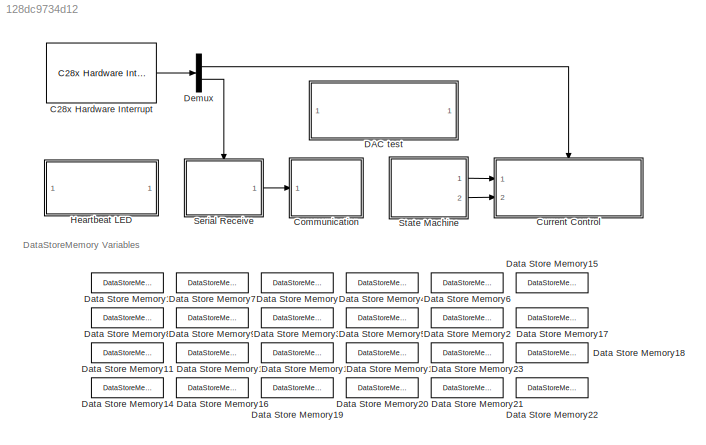
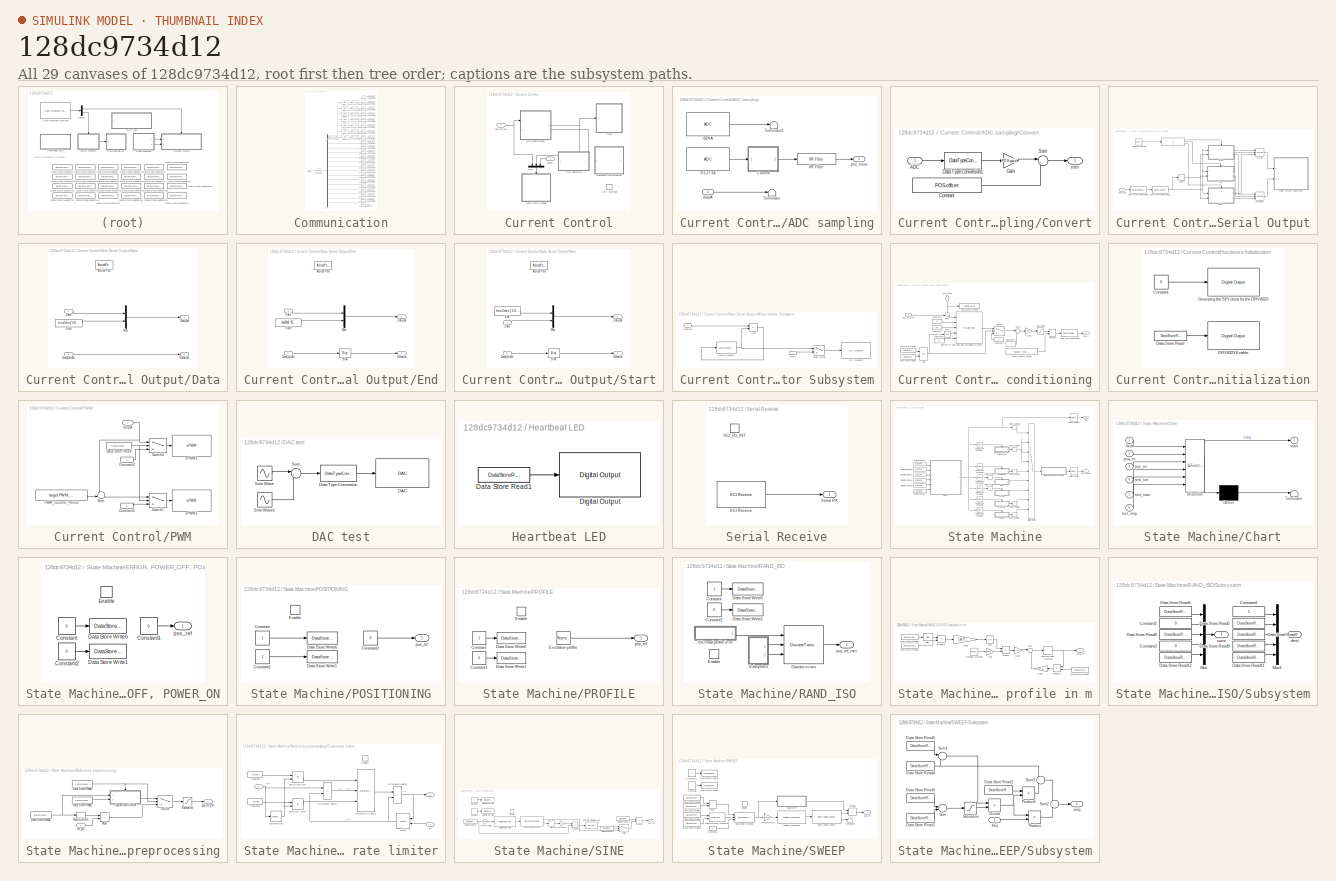
[diagram: thumbnail index - all 29 canvases of the model, root first then tree order]
MODEL slx_128dc9734d12
KIND model
CONFIG AbsTol = auto
CONFIG EnableMultiTasking = on
CONFIG FixedStep = auto
CONFIG InitFcn = params_NVH;
CONFIG MaxStep = auto
CONFIG MinStep = auto
CONFIG RelTol = 1e-3
CONFIG SampleTimeConstraint = Unconstrained
CONFIG SolverName = FixedStepDiscrete
CONFIG StartTime = 0.0
CONFIG StopTime = Inf
BLOCK [Reference] C28x Hardware Interrupt  REF=c2000lib/Scheduling/C28x Hardware Interrupt
  Ports = [0, 1]
  SourceBlock = c2000lib/Scheduling/C28x Hardware Interrupt
  SourceProductBaseCode = TIC2000
  SourceType = C28x Interrupt Block
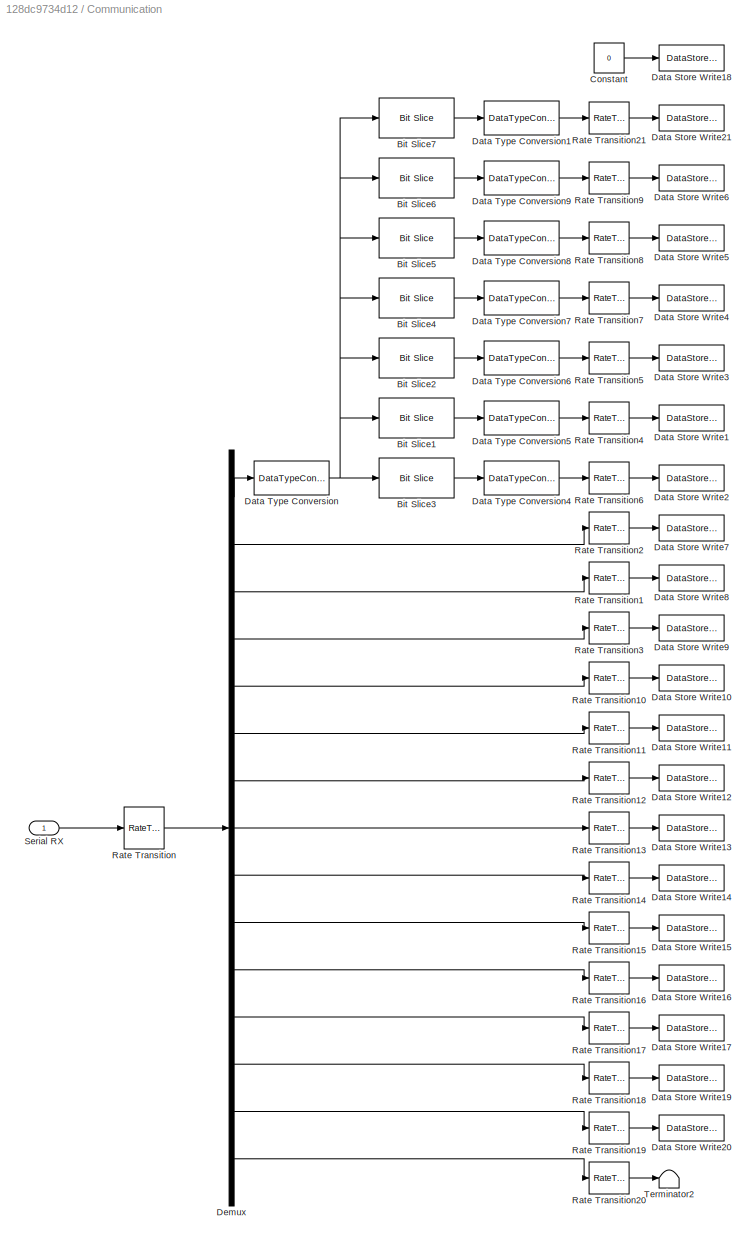
BLOCK [SubSystem] Communication
  Ports = [1]
  RequestExecContextInheritance = off
BLOCK [Reference] Communication/Bit Slice1  REF=hdlsllib/Logic and Bit
Operations/Bit Slice
  Ports = [1, 1]
  SourceBlock = hdlsllib/Logic and Bit\nOperations/Bit Slice
  SourceProductBaseCode = SL
  SourceType = Bit Slice
BLOCK [Reference] Communication/Bit Slice2  REF=hdlsllib/Logic and Bit
Operations/Bit Slice
  Ports = [1, 1]
  SourceBlock = hdlsllib/Logic and Bit\nOperations/Bit Slice
  SourceProductBaseCode = SL
  SourceType = Bit Slice
BLOCK [Reference] Communication/Bit Slice3  REF=hdlsllib/Logic and Bit
Operations/Bit Slice
  Ports = [1, 1]
  SourceBlock = hdlsllib/Logic and Bit\nOperations/Bit Slice
  SourceProductBaseCode = SL
  SourceType = Bit Slice
BLOCK [Reference] Communication/Bit Slice4  REF=hdlsllib/Logic and Bit
Operations/Bit Slice
  Ports = [1, 1]
  SourceBlock = hdlsllib/Logic and Bit\nOperations/Bit Slice
  SourceProductBaseCode = SL
  SourceType = Bit Slice
BLOCK [Reference] Communication/Bit Slice5  REF=hdlsllib/Logic and Bit
Operations/Bit Slice
  Ports = [1, 1]
  SourceBlock = hdlsllib/Logic and Bit\nOperations/Bit Slice
  SourceProductBaseCode = SL
  SourceType = Bit Slice
BLOCK [Reference] Communication/Bit Slice6  REF=hdlsllib/Logic and Bit
Operations/Bit Slice
  Ports = [1, 1]
  SourceBlock = hdlsllib/Logic and Bit\nOperations/Bit Slice
  SourceProductBaseCode = SL
  SourceType = Bit Slice
BLOCK [Reference] Communication/Bit Slice7  REF=hdlsllib/Logic and Bit
Operations/Bit Slice
  Ports = [1, 1]
  SourceBlock = hdlsllib/Logic and Bit\nOperations/Bit Slice
  SourceProductBaseCode = SL
  SourceType = Bit Slice
BLOCK [Constant] Communication/Constant
  OutDataTypeStr = boolean
  SampleTime = Ts
  Value = 0
BLOCK [DataStoreWrite] Communication/Data Store Write1
  DataStoreName = test_sel
  IndexOptions = Index vector (dialog)
  Indices = 1
  OutputSizes = 1
  Ports = [1]
BLOCK [DataStoreWrite] Communication/Data Store Write10
  DataStoreName = freq_Hz
  IndexOptions = Index vector (dialog)
  Indices = 1
  OutputSizes = 1
  Ports = [1]
BLOCK [DataStoreWrite] Communication/Data Store Write11
  DataStoreName = rate_Hz_s
  IndexOptions = Index vector (dialog)
  Indices = 1
  OutputSizes = 1
  Ports = [1]
BLOCK [DataStoreWrite] Communication/Data Store Write12
  DataStoreName = b04
  IndexOptions = Index vector (dialog)
  Indices = 1
  OutputSizes = 1
  Ports = [1]
BLOCK [DataStoreWrite] Communication/Data Store Write13
  DataStoreName = b2
  IndexOptions = Index vector (dialog)
  Indices = 1
  OutputSizes = 1
  Ports = [1]
BLOCK [DataStoreWrite] Communication/Data Store Write14
  DataStoreName = a1
  IndexOptions = Index vector (dialog)
  Indices = 1
  OutputSizes = 1
  Ports = [1]
BLOCK [DataStoreWrite] Communication/Data Store Write15
  DataStoreName = a2
  IndexOptions = Index vector (dialog)
  Indices = 1
  OutputSizes = 1
  Ports = [1]
BLOCK [DataStoreWrite] Communication/Data Store Write16
  DataStoreName = a3
  IndexOptions = Index vector (dialog)
  Indices = 1
  OutputSizes = 1
  Ports = [1]
BLOCK [DataStoreWrite] Communication/Data Store Write17
  DataStoreName = a4
  IndexOptions = Index vector (dialog)
  Indices = 1
  OutputSizes = 1
  Ports = [1]
BLOCK [DataStoreWrite] Communication/Data Store Write18
  DataStoreName = fault
  IndexOptions = Index vector (dialog)
  Indices = 1
  OutputSizes = 1
  Ports = [1]
BLOCK [DataStoreWrite] Communication/Data Store Write19
  DataStoreName = fend_Hz
  IndexOptions = Index vector (dialog)
  Indices = 1
  OutputSizes = 1
  Ports = [1]
BLOCK [DataStoreWrite] Communication/Data Store Write2
  DataStoreName = Gr_sel
  IndexOptions = Index vector (dialog)
  Indices = 1
  OutputSizes = 1
  Ports = [1]
BLOCK [DataStoreWrite] Communication/Data Store Write20
  DataStoreName = aend_mm
  IndexOptions = Index vector (dialog)
  Indices = 1
  OutputSizes = 1
  Ports = [1]
BLOCK [DataStoreWrite] Communication/Data Store Write21
  DataStoreName = wv_type
  IndexOptions = Index vector (dialog)
  Indices = 1
  OutputSizes = 1
  Ports = [1]
BLOCK [DataStoreWrite] Communication/Data Store Write3
  DataStoreName = test_stop
  IndexOptions = Index vector (dialog)
  Indices = 1
  OutputSizes = 1
  Ports = [1]
BLOCK [DataStoreWrite] Communication/Data Store Write4
  DataStoreName = test_start
  IndexOptions = Index vector (dialog)
  Indices = 1
  OutputSizes = 1
  Ports = [1]
BLOCK [DataStoreWrite] Communication/Data Store Write5
  DataStoreName = pos_en
  IndexOptions = Index vector (dialog)
  Indices = 1
  OutputSizes = 1
  Ports = [1]
BLOCK [DataStoreWrite] Communication/Data Store Write6
  DataStoreName = pow_en
  IndexOptions = Index vector (dialog)
  Indices = 1
  OutputSizes = 1
  Ports = [1]
BLOCK [DataStoreWrite] Communication/Data Store Write7
  DataStoreName = pos_init_mm
  IndexOptions = Index vector (dialog)
  Indices = 1
  OutputSizes = 1
  Ports = [1]
BLOCK [DataStoreWrite] Communication/Data Store Write8
  DataStoreName = amplitude_mm
  IndexOptions = Index vector (dialog)
  Indices = 1
  OutputSizes = 1
  Ports = [1]
BLOCK [DataStoreWrite] Communication/Data Store Write9
  DataStoreName = vcar_kmh
  IndexOptions = Index vector (dialog)
  Indices = 1
  OutputSizes = 1
  Ports = [1]
BLOCK [DataTypeConversion] Communication/Data Type Conversion
  ConvertRealWorld = Stored Integer (SI)
  OutDataTypeStr = uint32
  RndMeth = Floor
  SaturateOnIntegerOverflow = off
BLOCK [DataTypeConversion] Communication/Data Type Conversion1
  OutDataTypeStr = boolean
  RndMeth = Simplest
  SaturateOnIntegerOverflow = off
BLOCK [DataTypeConversion] Communication/Data Type Conversion4
  OutDataTypeStr = uint16
  RndMeth = Simplest
  SaturateOnIntegerOverflow = off
BLOCK [DataTypeConversion] Communication/Data Type Conversion5
  OutDataTypeStr = uint16
  RndMeth = Simplest
  SaturateOnIntegerOverflow = off
BLOCK [DataTypeConversion] Communication/Data Type Conversion6
  OutDataTypeStr = boolean
  RndMeth = Simplest
  SaturateOnIntegerOverflow = off
BLOCK [DataTypeConversion] Communication/Data Type Conversion7
  OutDataTypeStr = boolean
  RndMeth = Simplest
  SaturateOnIntegerOverflow = off
BLOCK [DataTypeConversion] Communication/Data Type Conversion8
  OutDataTypeStr = boolean
  RndMeth = Simplest
  SaturateOnIntegerOverflow = off
BLOCK [DataTypeConversion] Communication/Data Type Conversion9
  OutDataTypeStr = boolean
  RndMeth = Simplest
  SaturateOnIntegerOverflow = off
BLOCK [Demux] Communication/Demux
  Outputs = 15
  Ports = [1, 15]
BLOCK [RateTransition] Communication/Rate Transition
  Deterministic = off
  InitialCondition = zeros(15,1)
  OutPortSampleTime = Ts
BLOCK [RateTransition] Communication/Rate Transition1
  Deterministic = off
BLOCK [RateTransition] Communication/Rate Transition10
  Deterministic = off
BLOCK [RateTransition] Communication/Rate Transition11
  Deterministic = off
BLOCK [RateTransition] Communication/Rate Transition12
  Deterministic = off
BLOCK [RateTransition] Communication/Rate Transition13
  Deterministic = off
BLOCK [RateTransition] Communication/Rate Transition14
  Deterministic = off
BLOCK [RateTransition] Communication/Rate Transition15
  Deterministic = off
BLOCK [RateTransition] Communication/Rate Transition16
  Deterministic = off
BLOCK [RateTransition] Communication/Rate Transition17
  Deterministic = off
BLOCK [RateTransition] Communication/Rate Transition18
  Deterministic = off
BLOCK [RateTransition] Communication/Rate Transition19
  Deterministic = off
BLOCK [RateTransition] Communication/Rate Transition2
  Deterministic = off
BLOCK [RateTransition] Communication/Rate Transition20
  Deterministic = off
BLOCK [RateTransition] Communication/Rate Transition21
  Deterministic = off
BLOCK [RateTransition] Communication/Rate Transition3
  Deterministic = off
BLOCK [RateTransition] Communication/Rate Transition4
  Deterministic = off
BLOCK [RateTransition] Communication/Rate Transition5
  Deterministic = off
BLOCK [RateTransition] Communication/Rate Transition6
  Deterministic = off
BLOCK [RateTransition] Communication/Rate Transition7
  Deterministic = off
BLOCK [RateTransition] Communication/Rate Transition8
  Deterministic = off
BLOCK [RateTransition] Communication/Rate Transition9
  Deterministic = off
BLOCK [Inport] Communication/Serial RX
BLOCK [Terminator] Communication/Terminator2
BLOCK [SubSystem] Current Control
  Ports = [2, 0, 0, 1]
  RTWMemSecFuncExecute = code_ramfuncs
  RequestExecContextInheritance = off
BLOCK [TriggerPort] Current Control/ADC Interrupt
  Ports = []
  StatesWhenEnabling = held
  TriggerType = function-call
  VariantControl = Variant
BLOCK [SubSystem] Current Control/ADC sampling
  PortSchema = {"entries":[{"content":{"sides":[{"content":{"connectorIds":[]},"type":"ConnectorPlacement.EquallySpacedRectSide","uuid":"7a2cf5f2-16d9-4c06-9e50-766569fc1ffb"},{"content":{"connectorIds":[],"side":"RIGHT"},"type":"ConnectorPlacement.EquallySpacedRectSide","uuid":"bcd2dcb7-1f81-4f8a-ab4d-3b7c4b9f9b31"},{"content":{"connectorIds":["Out1","In1"],"side":"TOP"},"type":"ConnectorPlacement.EquallySpaced...<+241ch>
  Ports = [1, 1]
  RequestExecContextInheritance = off
BLOCK [SubSystem] Current Control/ADC sampling/Convert
  Ports = [1, 1]
  RequestExecContextInheritance = off
BLOCK [Inport] Current Control/ADC sampling/Convert/ADC
BLOCK [Constant] Current Control/ADC sampling/Convert/Constant
  OutDataTypeStr = single
  Value = POS.offset
BLOCK [DataTypeConversion] Current Control/ADC sampling/Convert/Data Type Conversion1
  ConvertRealWorld = Stored Integer (SI)
  OutDataTypeStr = dataType
  RndMeth = Simplest
  SaturateOnIntegerOverflow = off
BLOCK [Gain] Current Control/ADC sampling/Convert/Gain
  Gain = POS.gain
  OutDataTypeStr = dataType
  RndMeth = Simplest
BLOCK [Sum] Current Control/ADC sampling/Convert/Sum
  Inputs = |+-
  Ports = [2, 1]
BLOCK [Outport] Current Control/ADC sampling/Convert/mm
BLOCK [Reference] Current Control/ADC sampling/H1-J7 64  REF=c2802xlib/ADC
  NameLocation = top
  Ports = [0, 1]
  SourceBlock = c2802xlib/ADC
  SourceProductBaseCode = TIC2000
  SourceType = ADC Type 3-5
  UserDataPersistent = on
BLOCK [Reference] Current Control/ADC sampling/IIR Filter  REF=mcbcontrolslib/IIR Filter
  Ports = [1, 1]
  SourceBlock = mcbcontrolslib/IIR Filter
  SourceProductBaseCode = MT
  SourceType = IIR Filter
BLOCK [Reference] Current Control/ADC sampling/ISENA  REF=c2802xlib/ADC
  NameLocation = top
  Ports = [0, 1]
  SourceBlock = c2802xlib/ADC
  SourceProductBaseCode = TIC2000
  SourceType = ADC Type 3-5
  UserDataPersistent = on
BLOCK [Terminator] Current Control/ADC sampling/Terminator
BLOCK [Terminator] Current Control/ADC sampling/Terminator1
BLOCK [Inport] Current Control/ADC sampling/dutyA
BLOCK [Outport] Current Control/ADC sampling/pos_meas
  InitialOutput = 0
  VectorParamsAs1DForOutWhenUnconnected = off
BLOCK [SubSystem] Current Control/Data Serial Output
  NameLocation = left
  Ports = [1]
  RequestExecContextInheritance = off
BLOCK [Reference] Current Control/Data Serial Output/Counter Limited  REF=simulink/Sources/Counter
Limited
  Ports = [0, 1]
  SourceBlock = simulink/Sources/Counter\nLimited
  SourceProductBaseCode = SL
  SourceType = Counter Limited
BLOCK [SubSystem] Current Control/Data Serial Output/Data
  Ports = [2, 2, 0, 0, 0, 0, 0, 1]
  RequestExecContextInheritance = off
  TreatAsAtomicUnit = on
BLOCK [DataTypeConversion] Current Control/Data Serial Output/Data Type Conversion3
  ConvertRealWorld = Stored Integer (SI)
  OutDataTypeStr = uint16
  RndMeth = Floor
  SaturateOnIntegerOverflow = off
BLOCK [DataTypeConversion] Current Control/Data Serial Output/Data Type Conversion5
  OutDataTypeStr = fixdt(1,16,15-ceil(log2(45)))
  RndMeth = Simplest
  SaturateOnIntegerOverflow = off
BLOCK [ActionPort] Current Control/Data Serial Output/Data/Action Port
  ActionPortLabel = else
BLOCK [Inport] Current Control/Data Serial Output/Data/Data
BLOCK [Outport] Current Control/Data Serial Output/Data/Data_out
  VectorParamsAs1DForOutWhenUnconnected = off
BLOCK [Inport] Current Control/Data Serial Output/Data/Data_width
  Port = 2
BLOCK [Outport] Current Control/Data Serial Output/Data/Iteration
  Port = 2
  VectorParamsAs1DForOutWhenUnconnected = off
BLOCK [Mux] Current Control/Data Serial Output/Data/Mux
  DisplayOption = bar
  Inputs = 2
  Ports = [2, 1]
BLOCK [Constant] Current Control/Data Serial Output/Data/Start
  OutDataTypeStr = uint16
  Value = hex2dec('0000')
BLOCK [SubSystem] Current Control/Data Serial Output/End
  Ports = [2, 2, 0, 0, 0, 0, 0, 1]
  RequestExecContextInheritance = off
  TreatAsAtomicUnit = on
BLOCK [ActionPort] Current Control/Data Serial Output/End/Action Port
  ActionPortLabel = elseif(u1 == 999)
BLOCK [Bias] Current Control/Data Serial Output/End/Bias
  Bias = 1
  SaturateOnIntegerOverflow = off
BLOCK [Inport] Current Control/Data Serial Output/End/Data
BLOCK [Outport] Current Control/Data Serial Output/End/Data_out
  VectorParamsAs1DForOutWhenUnconnected = off
BLOCK [Inport] Current Control/Data Serial Output/End/Data_width
  Port = 2
BLOCK [Outport] Current Control/Data Serial Output/End/Iteration
  Port = 2
  VectorParamsAs1DForOutWhenUnconnected = off
BLOCK [Mux] Current Control/Data Serial Output/End/Mux
  DisplayOption = bar
  Inputs = 2
  Ports = [2, 1]
BLOCK [Constant] Current Control/Data Serial Output/End/Start
  OutDataTypeStr = uint16
  Value = hex2dec('4545')
BLOCK [If] Current Control/Data Serial Output/If
  ElseIfExpressions = u1 == 999
  IfExpression = u1 == 0
  Ports = [1, 3]
BLOCK [Merge] Current Control/Data Serial Output/Merge
  Inputs = 3
  Ports = [3, 1]
BLOCK [Merge] Current Control/Data Serial Output/Merge1
  Inputs = 3
  Ports = [3, 1]
BLOCK [SubSystem] Current Control/Data Serial Output/Start
  Ports = [2, 2, 0, 0, 0, 0, 0, 1]
  RequestExecContextInheritance = off
  TreatAsAtomicUnit = on
BLOCK [ActionPort] Current Control/Data Serial Output/Start/Action Port
  ActionPortLabel = if(u1 == 0)
BLOCK [Bias] Current Control/Data Serial Output/Start/Bias
  Bias = 1
  SaturateOnIntegerOverflow = off
BLOCK [Inport] Current Control/Data Serial Output/Start/Data
BLOCK [Outport] Current Control/Data Serial Output/Start/Data_out
  VectorParamsAs1DForOutWhenUnconnected = off
BLOCK [Inport] Current Control/Data Serial Output/Start/Data_width
  Port = 2
BLOCK [Constant] Current Control/Data Serial Output/Start/End
  OutDataTypeStr = uint16
  Value = hex2dec('5353')
BLOCK [Outport] Current Control/Data Serial Output/Start/Iteration
  Port = 2
  VectorParamsAs1DForOutWhenUnconnected = off
BLOCK [Mux] Current Control/Data Serial Output/Start/Mux
  DisplayOption = bar
  Inputs = 2
  Ports = [2, 1]
BLOCK [SubSystem] Current Control/Data Serial Output/While Iterator Subsystem
  Ports = [2]
  RequestExecContextInheritance = off
  TreatAsAtomicUnit = on
BLOCK [Sum] Current Control/Data Serial Output/While Iterator Subsystem/Add
  IconShape = rectangular
  Inputs = +-
  OutDataTypeStr = Inherit: Same as first input
  Ports = [2, 1]
BLOCK [Inport] Current Control/Data Serial Output/While Iterator Subsystem/Data
BLOCK [MultiPortSwitch] Current Control/Data Serial Output/While Iterator Subsystem/Index Vector
  InputSameDT = off
  Inputs = 1
  Ports = [2, 1]
  SaturateOnIntegerOverflow = off
BLOCK [Inport] Current Control/Data Serial Output/While Iterator Subsystem/Iteration
  Port = 2
BLOCK [Reference] Current Control/Data Serial Output/While Iterator Subsystem/SCI Transmit  REF=c280xlib/SCI Transmit
  Ports = [1]
  SourceBlock = c280xlib/SCI Transmit
  SourceProductBaseCode = TIC2000
  SourceType = C28x SCI Transmit
BLOCK [WhileIterator] Current Control/Data Serial Output/While Iterator Subsystem/While Iterator
  MaxIters = -1
  OutputDataType = int16
  Ports = [1, 1]
  ShowIterationPort = on
  WhileBlockType = do-while
BLOCK [Width] Current Control/Data Serial Output/Width
  DataType = uint16
  OutDataTypeMode = All ports same datatype
BLOCK [Inport] Current Control/Data Serial Output/send_vec
BLOCK [SubSystem] Current Control/Duty conditioning
  PortSchema = {"entries":[{"content":{"sides":[{"content":{"connectorIds":["In1"]},"type":"ConnectorPlacement.EquallySpacedRectSide","uuid":"a0799500-10a4-4433-8e57-709958199fd5"},{"content":{"connectorIds":["Out1","In2"],"side":"RIGHT"},"type":"ConnectorPlacement.EquallySpacedRectSide","uuid":"3bf72f91-b298-49c1-8116-d920c6c6ec77"},{"content":{"connectorIds":[],"side":"TOP"},"type":"ConnectorPlacement.EquallyS...<+246ch>
  Ports = [2, 1]
  RequestExecContextInheritance = off
BLOCK [Logic] Current Control/Duty conditioning/AND
  AllPortsSameDT = off
  IconShape = distinctive
  OutDataTypeStr = boolean
  Ports = [2, 1]
BLOCK [Constant] Current Control/Duty conditioning/Constant1
  OutDataTypeStr = dataType
  SampleTime = -1
  Value = Kp
BLOCK [Constant] Current Control/Duty conditioning/Constant2
  OutDataTypeStr = dataType
  SampleTime = -1
  Value = KiTs
BLOCK [Constant] Current Control/Duty conditioning/Constant3
  OutDataTypeStr = dataType
  SampleTime = -1
  Value = 0
BLOCK [Constant] Current Control/Duty conditioning/Constant4
  OutDataTypeStr = dataType
  SampleTime = -1
BLOCK [Constant] Current Control/Duty conditioning/Constant5
  OutDataTypeStr = dataType
  SampleTime = -1
  Value = 0
BLOCK [DataStoreRead] Current Control/Duty conditioning/Data Store Read
  DataStoreName = pow_en
  IndexOptions = Index vector (dialog)
  Indices = 1
  OutputSizes = 1
  Ports = [0, 1]
BLOCK [DataStoreRead] Current Control/Duty conditioning/Data Store Read1
  DataStoreName = control_en
  IndexOptions = Index vector (dialog)
  Indices = 1
  OutputSizes = 1
  Ports = [0, 1]
BLOCK [DataStoreWrite] Current Control/Duty conditioning/Data Store Write6
  DataStoreName = pos_meas_mm
  IndexOptions = Index vector (dialog)
  Indices = 1
  OutputSizes = 1
  Ports = [1]
BLOCK [DataTypeConversion] Current Control/Duty conditioning/Data Type Conversion
  OutDataTypeStr = uint16
  RndMeth = Simplest
BLOCK [Reference] Current Control/Duty conditioning/Discrete PI Controller with anti-windup & reset  REF=slpidlib/PID Controller
  Ports = [5, 1]
  SourceBlock = slpidlib/PID Controller
  SourceProductBaseCode = SL
  SourceType = PID 1dof
BLOCK [Gain] Current Control/Duty conditioning/Gain2
  Gain = 0.5
  OutDataTypeStr = dataType
  RndMeth = Simplest
BLOCK [Logic] Current Control/Duty conditioning/NOT
  AllPortsSameDT = off
  IconShape = distinctive
  Operator = NOT
  OutDataTypeStr = boolean
  Ports = [1, 1]
BLOCK [Constant] Current Control/Duty conditioning/PWM_Counter_Period
  OutDataTypeStr = dataType
  SampleTime = -1
  Value = target.PWM_Counter_Period
BLOCK [Product] Current Control/Duty conditioning/Product
  OutDataTypeStr = Inherit: Same as first input
  Ports = [2, 1]
  RndMeth = Simplest
BLOCK [Saturate] Current Control/Duty conditioning/Saturation
  LowerLimit = 0.29
  RndMeth = Simplest
  UpperLimit = 0.71
BLOCK [Sum] Current Control/Duty conditioning/Sum
  Inputs = -+|
  Ports = [2, 1]
BLOCK [Sum] Current Control/Duty conditioning/Sum1
  Inputs = |++
  Ports = [2, 1]
BLOCK [Switch] Current Control/Duty conditioning/Switch4
  InputSameDT = off
  RndMeth = Simplest
  SaturateOnIntegerOverflow = off
  Threshold = 0.5
BLOCK [Outport] Current Control/Duty conditioning/dutyA
BLOCK [Inport] Current Control/Duty conditioning/pos_meas
  NameLocation = left
  Port = 2
BLOCK [Inport] Current Control/Duty conditioning/pos_ref_mm
BLOCK [SubSystem] Current Control/Hardware Initialization
  Ports = []
  RequestExecContextInheritance = off
BLOCK [Reference] Current Control/Hardware Initialization/ Grounding the SPI clock for the DRV8323  REF=c2837xDlib/Digital Output
  Ports = [1]
  SourceBlock = c2837xDlib/Digital Output
  SourceProductBaseCode = TIC2000
  SourceType = F2837x GPIO Digital Output
  UserDataPersistent = on
BLOCK [Constant] Current Control/Hardware Initialization/Constant
  OutDataTypeStr = uint16
  SampleTime = -1
  Value = 0
BLOCK [Reference] Current Control/Hardware Initialization/DRV8323 Enable  REF=c2837xDlib/Digital Output
  Ports = [1]
  SourceBlock = c2837xDlib/Digital Output
  SourceProductBaseCode = TIC2000
  SourceType = F2837x GPIO Digital Output
  UserDataPersistent = on
BLOCK [DataStoreRead] Current Control/Hardware Initialization/Data Store Read
  DataStoreName = pow_en
  IndexOptions = Index vector (dialog)
  Indices = 1
  OutputSizes = 1
  Ports = [0, 1]
BLOCK [Mux] Current Control/Mux
  DisplayOption = bar
  Inputs = 3
  NameLocation = left
  Ports = [3, 1]
BLOCK [SubSystem] Current Control/PWM
  Ports = [1]
  RequestExecContextInheritance = off
BLOCK [Constant] Current Control/PWM/Constant1
  OutDataTypeStr = uint16
  Value = 0
BLOCK [Constant] Current Control/PWM/Constant2
  OutDataTypeStr = uint16
  Value = 0
BLOCK [DataStoreRead] Current Control/PWM/Data Store Read
  DataStoreName = pow_en
  IndexOptions = Index vector (dialog)
  Indices = 1
  OutputSizes = 1
  Ports = [0, 1]
BLOCK [Constant] Current Control/PWM/PWM_Counter_Period
  OutDataTypeStr = uint16
  SampleTime = -1
  Value = target.PWM_Counter_Period
BLOCK [Sum] Current Control/PWM/Sum
  Inputs = -+|
  Ports = [2, 1]
BLOCK [Switch] Current Control/PWM/Switch1
  InputSameDT = off
  RndMeth = Simplest
  SaturateOnIntegerOverflow = off
  Threshold = 0.5
BLOCK [Switch] Current Control/PWM/Switch4
  InputSameDT = off
  RndMeth = Simplest
  SaturateOnIntegerOverflow = off
  Threshold = 0.5
BLOCK [Inport] Current Control/PWM/dutyA
BLOCK [Reference] Current Control/PWM/ePWM1  REF=c2802xlib/ePWM
  Ports = [1]
  SourceBlock = c2802xlib/ePWM
  SourceProductBaseCode = TIC2000
  SourceType = ePWM Type 1-4
  UserDataPersistent = on
BLOCK [Reference] Current Control/PWM/ePWM2  REF=c2802xlib/ePWM
  Ports = [1]
  SourceBlock = c2802xlib/ePWM
  SourceProductBaseCode = TIC2000
  SourceType = ePWM Type 1-4
  UserDataPersistent = on
BLOCK [Inport] Current Control/pos_ref_mm
BLOCK [Inport] Current Control/state
  NameLocation = top
  Port = 2
BLOCK [SubSystem] DAC test
  Commented = on
  Ports = []
  RequestExecContextInheritance = off
BLOCK [Reference] DAC test/DAC  REF=c2837xDlib/DAC
  Ports = [1]
  SourceBlock = c2837xDlib/DAC
  SourceProductBaseCode = TIC2000
  SourceType = codertarget.tic2000.blocks.DACWrite
BLOCK [DataTypeConversion] DAC test/Data Type Conversion
  OutDataTypeStr = uint16
  RndMeth = Floor
  SaturateOnIntegerOverflow = off
BLOCK [Sin] DAC test/Sine Wave
  Amplitude = 2048-100
  Bias = 2048
  Frequency = 2*pi
  Ports = [0, 1]
  SampleTime = Ts
BLOCK [Sin] DAC test/Sine Wave1
  Amplitude = 100
  Frequency = 2*pi*2000
  Ports = [0, 1]
  SampleTime = Ts
BLOCK [Sum] DAC test/Sum
  Inputs = |++
  Ports = [2, 1]
BLOCK [DataStoreMemory] Data Store Memory
  DataStoreName = pow_en
  ReadBeforeWriteMsg = warning
  ShowAdditionalParam = off
  WriteAfterReadMsg = warning
  WriteAfterWriteMsg = warning
BLOCK [DataStoreMemory] Data Store Memory1
  DataStoreName = pos_init_mm
  ReadBeforeWriteMsg = warning
  ShowAdditionalParam = off
  WriteAfterReadMsg = warning
  WriteAfterWriteMsg = warning
BLOCK [DataStoreMemory] Data Store Memory10
  DataStoreName = fault
  ReadBeforeWriteMsg = warning
  ShowAdditionalParam = off
  WriteAfterReadMsg = warning
  WriteAfterWriteMsg = warning
BLOCK [DataStoreMemory] Data Store Memory11
  DataStoreName = control_en
  ReadBeforeWriteMsg = warning
  ShowAdditionalParam = off
  WriteAfterReadMsg = warning
  WriteAfterWriteMsg = warning
BLOCK [DataStoreMemory] Data Store Memory12
  DataStoreName = slowPID
  ReadBeforeWriteMsg = warning
  ShowAdditionalParam = off
  WriteAfterReadMsg = warning
  WriteAfterWriteMsg = warning
BLOCK [DataStoreMemory] Data Store Memory13
  DataStoreName = pos_meas_mm
  ReadBeforeWriteMsg = warning
  ShowAdditionalParam = off
  WriteAfterReadMsg = warning
  WriteAfterWriteMsg = warning
BLOCK [DataStoreMemory] Data Store Memory14
  DataStoreName = b04
  ReadBeforeWriteMsg = warning
  ShowAdditionalParam = off
  WriteAfterReadMsg = warning
  WriteAfterWriteMsg = warning
BLOCK [DataStoreMemory] Data Store Memory15
  DataStoreName = fend_Hz
  ReadBeforeWriteMsg = warning
  ShowAdditionalParam = off
  WriteAfterReadMsg = warning
  WriteAfterWriteMsg = warning
BLOCK [DataStoreMemory] Data Store Memory16
  DataStoreName = b2
  ReadBeforeWriteMsg = warning
  ShowAdditionalParam = off
  WriteAfterReadMsg = warning
  WriteAfterWriteMsg = warning
BLOCK [DataStoreMemory] Data Store Memory17
  DataStoreName = aend_mm
  ReadBeforeWriteMsg = warning
  ShowAdditionalParam = off
  WriteAfterReadMsg = warning
  WriteAfterWriteMsg = warning
BLOCK [DataStoreMemory] Data Store Memory18
  DataStoreName = wv_type
  ReadBeforeWriteMsg = warning
  ShowAdditionalParam = off
  WriteAfterReadMsg = warning
  WriteAfterWriteMsg = warning
BLOCK [DataStoreMemory] Data Store Memory19
  DataStoreName = a1
  ReadBeforeWriteMsg = warning
  ShowAdditionalParam = off
  WriteAfterReadMsg = warning
  WriteAfterWriteMsg = warning
BLOCK [DataStoreMemory] Data Store Memory2
  DataStoreName = Gr_sel
  ReadBeforeWriteMsg = warning
  ShowAdditionalParam = off
  WriteAfterReadMsg = warning
  WriteAfterWriteMsg = warning
BLOCK [DataStoreMemory] Data Store Memory20
  DataStoreName = a2
  ReadBeforeWriteMsg = warning
  ShowAdditionalParam = off
  WriteAfterReadMsg = warning
  WriteAfterWriteMsg = warning
BLOCK [DataStoreMemory] Data Store Memory21
  DataStoreName = a3
  ReadBeforeWriteMsg = warning
  ShowAdditionalParam = off
  WriteAfterReadMsg = warning
  WriteAfterWriteMsg = warning
BLOCK [DataStoreMemory] Data Store Memory22
  DataStoreName = a4
  ReadBeforeWriteMsg = warning
  ShowAdditionalParam = off
  WriteAfterReadMsg = warning
  WriteAfterWriteMsg = warning
BLOCK [DataStoreMemory] Data Store Memory23
  DataStoreName = rate_Hz_s
  ReadBeforeWriteMsg = warning
  ShowAdditionalParam = off
  WriteAfterReadMsg = warning
  WriteAfterWriteMsg = warning
BLOCK [DataStoreMemory] Data Store Memory3
  DataStoreName = pos_en
  ReadBeforeWriteMsg = warning
  ShowAdditionalParam = off
  WriteAfterReadMsg = warning
  WriteAfterWriteMsg = warning
BLOCK [DataStoreMemory] Data Store Memory4
  DataStoreName = test_start
  ReadBeforeWriteMsg = warning
  ShowAdditionalParam = off
  WriteAfterReadMsg = warning
  WriteAfterWriteMsg = warning
BLOCK [DataStoreMemory] Data Store Memory5
  DataStoreName = test_stop
  ReadBeforeWriteMsg = warning
  ShowAdditionalParam = off
  WriteAfterReadMsg = warning
  WriteAfterWriteMsg = warning
BLOCK [DataStoreMemory] Data Store Memory6
  DataStoreName = test_sel
  ReadBeforeWriteMsg = warning
  ShowAdditionalParam = off
  WriteAfterReadMsg = warning
  WriteAfterWriteMsg = warning
BLOCK [DataStoreMemory] Data Store Memory7
  DataStoreName = vcar_kmh
  ReadBeforeWriteMsg = warning
  ShowAdditionalParam = off
  WriteAfterReadMsg = warning
  WriteAfterWriteMsg = warning
BLOCK [DataStoreMemory] Data Store Memory8
  DataStoreName = amplitude_mm
  ReadBeforeWriteMsg = warning
  ShowAdditionalParam = off
  WriteAfterReadMsg = warning
  WriteAfterWriteMsg = warning
BLOCK [DataStoreMemory] Data Store Memory9
  DataStoreName = freq_Hz
  ReadBeforeWriteMsg = warning
  ShowAdditionalParam = off
  WriteAfterReadMsg = warning
  WriteAfterWriteMsg = warning
BLOCK [Demux] Demux
  Outputs = 2
  Ports = [1, 2]
BLOCK [SubSystem] Heartbeat LED
  Ports = []
  RequestExecContextInheritance = off
  TreatAsAtomicUnit = on
BLOCK [DataStoreRead] Heartbeat LED/Data Store Read1
  DataStoreName = pos_en
  IndexOptions = Index vector (dialog)
  Indices = 1
  OutputSizes = 1
  Ports = [0, 1]
BLOCK [Reference] Heartbeat LED/Digital Output  REF=c2837xDlib/Digital Output
  Ports = [1]
  SourceBlock = c2837xDlib/Digital Output
  SourceProductBaseCode = TIC2000
  SourceType = F2837x GPIO Digital Output
  UserDataPersistent = on
BLOCK [SubSystem] Serial Receive
  Ports = [0, 1, 0, 1]
  RTWMemSecFuncExecute = code_ramfuncs
  RequestExecContextInheritance = off
  SystemSampleTime = 1e-3
BLOCK [Reference] Serial Receive/SCI Receive  REF=c280xlib/SCI Receive
  Ports = [0, 1]
  SourceBlock = c280xlib/SCI Receive
  SourceProductBaseCode = TIC2000
  SourceType = C28x SCI Receive
BLOCK [TriggerPort] Serial Receive/SCI_Rx_INT
  Ports = []
  StatesWhenEnabling = held
  TriggerType = function-call
  VariantControl = Variant
BLOCK [Outport] Serial Receive/Serial RX
  VectorParamsAs1DForOutWhenUnconnected = off
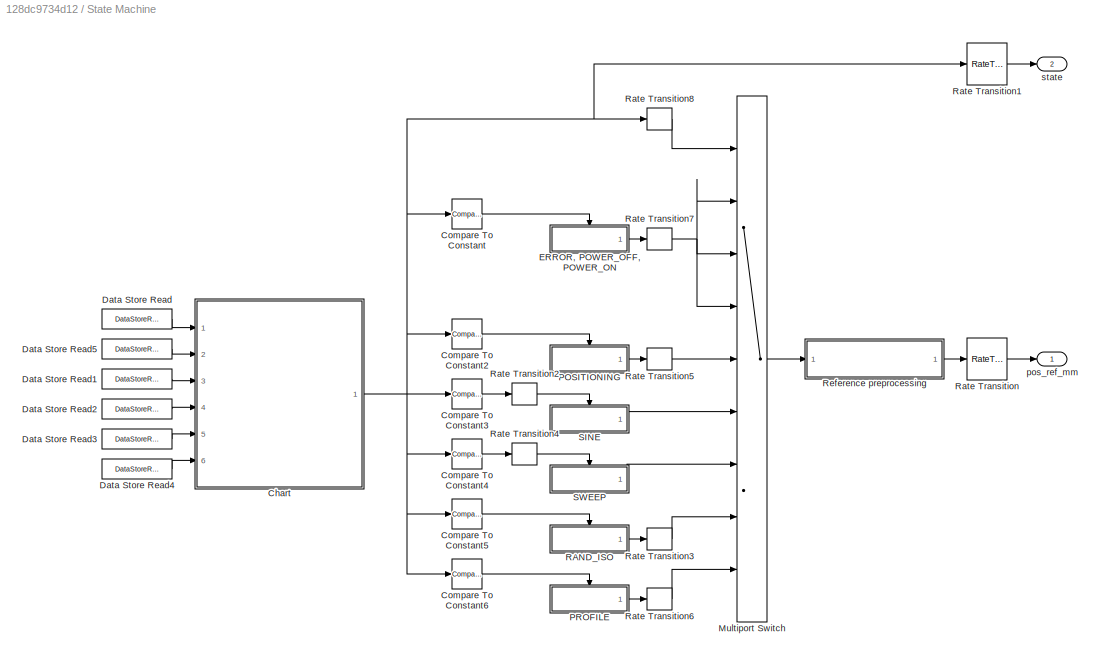
BLOCK [SubSystem] State Machine
  Ports = [0, 2]
  RequestExecContextInheritance = off
BLOCK [SubSystem] State Machine/Chart
  ErrorFcn = Stateflow.Translate.translate
  PermitHierarchicalResolution = ExplicitOnly
  Ports = [6, 1]
  RequestExecContextInheritance = off
  SFBlockType = Chart
  TreatAsAtomicUnit = on
BLOCK [Demux] State Machine/Chart/ Demux 
  Outputs = 1
  Ports = [1, 1]
BLOCK [S-Function] State Machine/Chart/ SFunction 
  EnableBusSupport = on
  FunctionName = sf_sfun
  PortCounts = [6 2]
  Ports = [6, 2]
  SFcnIsStateOwnerBlock = off
  SFunctionDeploymentMode = off
  Tag = Stateflow S-Function 3
BLOCK [Terminator] State Machine/Chart/ Terminator 
BLOCK [Inport] State Machine/Chart/fault
BLOCK [Inport] State Machine/Chart/pos_en
  Port = 3
BLOCK [Inport] State Machine/Chart/pow_en
  Port = 2
BLOCK [Outport] State Machine/Chart/state
BLOCK [Inport] State Machine/Chart/test_sel
  Port = 4
BLOCK [Inport] State Machine/Chart/test_start
  Port = 5
BLOCK [Inport] State Machine/Chart/test_stop
  Port = 6
BLOCK [Reference] State Machine/Compare To Constant  REF=simulink/Logic and Bit
Operations/Compare
To Constant
  Ports = [1, 1]
  SourceBlock = simulink/Logic and Bit\nOperations/Compare\nTo Constant
  SourceProductBaseCode = SL
  SourceType = Compare To Constant
BLOCK [Reference] State Machine/Compare To Constant2  REF=simulink/Logic and Bit
Operations/Compare
To Constant
  Ports = [1, 1]
  SourceBlock = simulink/Logic and Bit\nOperations/Compare\nTo Constant
  SourceProductBaseCode = SL
  SourceType = Compare To Constant
BLOCK [Reference] State Machine/Compare To Constant3  REF=simulink/Logic and Bit
Operations/Compare
To Constant
  Ports = [1, 1]
  SourceBlock = simulink/Logic and Bit\nOperations/Compare\nTo Constant
  SourceProductBaseCode = SL
  SourceType = Compare To Constant
BLOCK [Reference] State Machine/Compare To Constant4  REF=simulink/Logic and Bit
Operations/Compare
To Constant
  Ports = [1, 1]
  SourceBlock = simulink/Logic and Bit\nOperations/Compare\nTo Constant
  SourceProductBaseCode = SL
  SourceType = Compare To Constant
BLOCK [Reference] State Machine/Compare To Constant5  REF=simulink/Logic and Bit
Operations/Compare
To Constant
  Ports = [1, 1]
  SourceBlock = simulink/Logic and Bit\nOperations/Compare\nTo Constant
  SourceProductBaseCode = SL
  SourceType = Compare To Constant
BLOCK [Reference] State Machine/Compare To Constant6  REF=simulink/Logic and Bit
Operations/Compare
To Constant
  Ports = [1, 1]
  SourceBlock = simulink/Logic and Bit\nOperations/Compare\nTo Constant
  SourceProductBaseCode = SL
  SourceType = Compare To Constant
BLOCK [DataStoreRead] State Machine/Data Store Read
  DataStoreName = fault
  IndexOptions = Index vector (dialog)
  Indices = 1
  OutputSizes = 1
  Ports = [0, 1]
  SampleTime = Tref
BLOCK [DataStoreRead] State Machine/Data Store Read1
  DataStoreName = pos_en
  IndexOptions = Index vector (dialog)
  Indices = 1
  OutputSizes = 1
  Ports = [0, 1]
  SampleTime = Tref
BLOCK [DataStoreRead] State Machine/Data Store Read2
  DataStoreName = test_sel
  IndexOptions = Index vector (dialog)
  Indices = 1
  OutputSizes = 1
  Ports = [0, 1]
  SampleTime = Tref
BLOCK [DataStoreRead] State Machine/Data Store Read3
  DataStoreName = test_start
  IndexOptions = Index vector (dialog)
  Indices = 1
  OutputSizes = 1
  Ports = [0, 1]
  SampleTime = Tref
BLOCK [DataStoreRead] State Machine/Data Store Read4
  DataStoreName = test_stop
  IndexOptions = Index vector (dialog)
  Indices = 1
  OutputSizes = 1
  Ports = [0, 1]
  SampleTime = Tref
BLOCK [DataStoreRead] State Machine/Data Store Read5
  DataStoreName = pow_en
  IndexOptions = Index vector (dialog)
  Indices = 1
  OutputSizes = 1
  Ports = [0, 1]
  SampleTime = Tref
BLOCK [SubSystem] State Machine/ERROR, POWER_OFF, POWER_ON
  Ports = [0, 1, 1]
  RequestExecContextInheritance = off
  TreatAsAtomicUnit = on
BLOCK [Constant] State Machine/ERROR, POWER_OFF, POWER_ON/Constant
  OutDataTypeStr = boolean
  SampleTime = Tref
  Value = 0
BLOCK [Constant] State Machine/ERROR, POWER_OFF, POWER_ON/Constant1
  OutDataTypeStr = single
  SampleTime = Tref
  Value = 0
BLOCK [Constant] State Machine/ERROR, POWER_OFF, POWER_ON/Constant2
  OutDataTypeStr = boolean
  SampleTime = Tref
  Value = 0
BLOCK [DataStoreWrite] State Machine/ERROR, POWER_OFF, POWER_ON/Data Store Write1
  DataStoreName = slowPID
  IndexOptions = Index vector (dialog)
  Indices = 1
  OutputSizes = 1
  Ports = [1]
BLOCK [DataStoreWrite] State Machine/ERROR, POWER_OFF, POWER_ON/Data Store Write6
  DataStoreName = control_en
  IndexOptions = Index vector (dialog)
  Indices = 1
  OutputSizes = 1
  Ports = [1]
BLOCK [EnablePort] State Machine/ERROR, POWER_OFF, POWER_ON/Enable
  Ports = []
  StatesWhenEnabling = reset
BLOCK [Outport] State Machine/ERROR, POWER_OFF, POWER_ON/pos_ref
BLOCK [MultiPortSwitch] State Machine/Multiport Switch
  DataPortIndices = {-2,-1,0,1,2,3,4,5}
  DataPortOrder = Specify indices
  InputSameDT = off
  Inputs = 7
  Ports = [9, 1]
  SaturateOnIntegerOverflow = off
BLOCK [SubSystem] State Machine/POSITIONING
  Ports = [0, 1, 1]
  RequestExecContextInheritance = off
  TreatAsAtomicUnit = on
BLOCK [Constant] State Machine/POSITIONING/Constant
  OutDataTypeStr = boolean
  SampleTime = Tref
BLOCK [Constant] State Machine/POSITIONING/Constant1
  OutDataTypeStr = boolean
  SampleTime = Tref
BLOCK [Constant] State Machine/POSITIONING/Constant2
  OutDataTypeStr = single
  SampleTime = Tref
  Value = 0
BLOCK [DataStoreWrite] State Machine/POSITIONING/Data Store Write1
  DataStoreName = slowPID
  IndexOptions = Index vector (dialog)
  Indices = 1
  OutputSizes = 1
  Ports = [1]
BLOCK [DataStoreWrite] State Machine/POSITIONING/Data Store Write6
  DataStoreName = control_en
  IndexOptions = Index vector (dialog)
  Indices = 1
  OutputSizes = 1
  Ports = [1]
BLOCK [EnablePort] State Machine/POSITIONING/Enable
  Ports = []
  StatesWhenEnabling = reset
BLOCK [Outport] State Machine/POSITIONING/pos_ref
BLOCK [SubSystem] State Machine/PROFILE
  Ports = [0, 1, 1]
  RequestExecContextInheritance = off
  TreatAsAtomicUnit = on
BLOCK [Constant] State Machine/PROFILE/Constant
  OutDataTypeStr = boolean
  SampleTime = Tref
BLOCK [Constant] State Machine/PROFILE/Constant1
  OutDataTypeStr = boolean
  SampleTime = Tref
  Value = 0
BLOCK [DataStoreWrite] State Machine/PROFILE/Data Store Write1
  DataStoreName = slowPID
  IndexOptions = Index vector (dialog)
  Indices = 1
  OutputSizes = 1
  Ports = [1]
BLOCK [DataStoreWrite] State Machine/PROFILE/Data Store Write6
  DataStoreName = control_en
  IndexOptions = Index vector (dialog)
  Indices = 1
  OutputSizes = 1
  Ports = [1]
BLOCK [EnablePort] State Machine/PROFILE/Enable
  Ports = []
  StatesWhenEnabling = reset
BLOCK [Reference] State Machine/PROFILE/Excitation profile  REF=simulink/Sources/Repeating
Sequence
Stair
  Ports = [0, 1]
  SourceBlock = simulink/Sources/Repeating\nSequence\nStair
  SourceProductBaseCode = SL
  SourceType = Repeating Sequence Stair
BLOCK [Outport] State Machine/PROFILE/pos_ref
BLOCK [SubSystem] State Machine/RAND_ISO
  Ports = [0, 1, 1]
  RequestExecContextInheritance = off
  TreatAsAtomicUnit = on
BLOCK [Constant] State Machine/RAND_ISO/Constant
  OutDataTypeStr = boolean
  SampleTime = Tref
BLOCK [Constant] State Machine/RAND_ISO/Constant1
  OutDataTypeStr = boolean
  SampleTime = Tref
  Value = 0
BLOCK [DataStoreWrite] State Machine/RAND_ISO/Data Store Write1
  DataStoreName = slowPID
  IndexOptions = Index vector (dialog)
  Indices = 1
  OutputSizes = 1
  Ports = [1]
BLOCK [DataStoreWrite] State Machine/RAND_ISO/Data Store Write6
  DataStoreName = control_en
  IndexOptions = Index vector (dialog)
  Indices = 1
  OutputSizes = 1
  Ports = [1]
BLOCK [EnablePort] State Machine/RAND_ISO/Enable
  Ports = []
  StatesWhenEnabling = reset
BLOCK [DiscreteTransferFcn] State Machine/RAND_ISO/Gstroke in mm
  Denominator = denz
  DenominatorSource = Input port
  InputPortMap = u0,p1,p3
  Numerator = numz*1000
  NumeratorSource = Input port
  Ports = [3, 1]
  SampleTime = Tref
  a0EqualsOne = on
BLOCK [SubSystem] State Machine/RAND_ISO/ISO road profile in m
  Ports = [0, 1]
  RequestExecContextInheritance = off
BLOCK [Bias] State Machine/RAND_ISO/ISO road profile in m/Bias
  Bias = 1
  SaturateOnIntegerOverflow = off
BLOCK [DataStoreRead] State Machine/RAND_ISO/ISO road profile in m/Data Store Read1
  DataStoreName = vcar_kmh
  IndexOptions = Index vector (dialog)
  Indices = 1
  OutputSizes = 1
  Ports = [0, 1]
  SampleTime = Tref
BLOCK [DataStoreRead] State Machine/RAND_ISO/ISO road profile in m/Data Store Read2
  DataStoreName = vcar_kmh
  IndexOptions = Index vector (dialog)
  Indices = 1
  OutputSizes = 1
  Ports = [0, 1]
  SampleTime = Tref
BLOCK [DataStoreRead] State Machine/RAND_ISO/ISO road profile in m/Data Store Read3
  DataStoreName = Gr_sel
  IndexOptions = Index vector (dialog)
  Indices = 1
  OutputSizes = 1
  Ports = [0, 1]
  SampleTime = Tref
BLOCK [DiscreteIntegrator] State Machine/RAND_ISO/ISO road profile in m/Discrete-Time Integrator
  ICPrevOutput = DiscIntNeverNeededParam
  ICPrevScaledInput = DiscIntNeverNeededParam
  InitialConditionSetting = Auto
  Ports = [1, 1]
  SampleTime = -1
BLOCK [Gain] State Machine/RAND_ISO/ISO road profile in m/Gain
  Gain = sqrt(0.5/(100*Ts))
  OutDataTypeStr = single
BLOCK [Gain] State Machine/RAND_ISO/ISO road profile in m/Gain1
  Gain = 2*pi
  OutDataTypeStr = single
BLOCK [Gain] State Machine/RAND_ISO/ISO road profile in m/Gain2
  Gain = 2*pi/36
  OutDataTypeStr = single
BLOCK [Gain] State Machine/RAND_ISO/ISO road profile in m/Gain3
  Gain = 1.6e-7*4/3.6
BLOCK [Product] State Machine/RAND_ISO/ISO road profile in m/Product
  Ports = [2, 1]
BLOCK [Product] State Machine/RAND_ISO/ISO road profile in m/Product1
  Ports = [2, 1]
BLOCK [Product] State Machine/RAND_ISO/ISO road profile in m/Product2
  Ports = [2, 1]
BLOCK [RandomNumber] State Machine/RAND_ISO/ISO road profile in m/Random Number
  SampleTime = Tref
  Seed = 23341
BLOCK [Sqrt] State Machine/RAND_ISO/ISO road profile in m/Sqrt
BLOCK [Sum] State Machine/RAND_ISO/ISO road profile in m/Sum
  Inputs = |+-
  Ports = [2, 1]
BLOCK [Outport] State Machine/RAND_ISO/ISO road profile in m/zroad_m
BLOCK [SubSystem] State Machine/RAND_ISO/Subsystem
  Ports = [0, 2]
  RequestExecContextInheritance = off
BLOCK [Constant] State Machine/RAND_ISO/Subsystem/Constant2
  OutDataTypeStr = single
  SampleTime = Tref
  Value = 0
BLOCK [Constant] State Machine/RAND_ISO/Subsystem/Constant3
  OutDataTypeStr = single
  SampleTime = Tref
  Value = 0
BLOCK [Constant] State Machine/RAND_ISO/Subsystem/Constant4
  OutDataTypeStr = single
  SampleTime = Tref
BLOCK [DataStoreRead] State Machine/RAND_ISO/Subsystem/Data Store Read11
  DataStoreName = a4
  IndexOptions = Index vector (dialog)
  Indices = 1
  OutputSizes = 1
  Ports = [0, 1]
  SampleTime = Tref
BLOCK [DataStoreRead] State Machine/RAND_ISO/Subsystem/Data Store Read12
  DataStoreName = b04
  IndexOptions = Index vector (dialog)
  Indices = 1
  OutputSizes = 1
  Ports = [0, 1]
  SampleTime = Tref
BLOCK [DataStoreRead] State Machine/RAND_ISO/Subsystem/Data Store Read4
  DataStoreName = b04
  IndexOptions = Index vector (dialog)
  Indices = 1
  OutputSizes = 1
  Ports = [0, 1]
  SampleTime = Tref
BLOCK [DataStoreRead] State Machine/RAND_ISO/Subsystem/Data Store Read5
  DataStoreName = a1
  IndexOptions = Index vector (dialog)
  Indices = 1
  OutputSizes = 1
  Ports = [0, 1]
  SampleTime = Tref
BLOCK [DataStoreRead] State Machine/RAND_ISO/Subsystem/Data Store Read7
  DataStoreName = a2
  IndexOptions = Index vector (dialog)
  Indices = 1
  OutputSizes = 1
  Ports = [0, 1]
  SampleTime = Tref
BLOCK [DataStoreRead] State Machine/RAND_ISO/Subsystem/Data Store Read8
  DataStoreName = b2
  IndexOptions = Index vector (dialog)
  Indices = 1
  OutputSizes = 1
  Ports = [0, 1]
  SampleTime = Tref
BLOCK [DataStoreRead] State Machine/RAND_ISO/Subsystem/Data Store Read9
  DataStoreName = a3
  IndexOptions = Index vector (dialog)
  Indices = 1
  OutputSizes = 1
  Ports = [0, 1]
  SampleTime = Tref
BLOCK [Mux] State Machine/RAND_ISO/Subsystem/Mux
  DisplayOption = bar
  Inputs = 5
  Ports = [5, 1]
BLOCK [Mux] State Machine/RAND_ISO/Subsystem/Mux1
  DisplayOption = bar
  Inputs = 5
  Ports = [5, 1]
BLOCK [Outport] State Machine/RAND_ISO/Subsystem/denz
  Port = 2
BLOCK [Outport] State Machine/RAND_ISO/Subsystem/numz
BLOCK [Outport] State Machine/RAND_ISO/pos_ref_mm
BLOCK [RateTransition] State Machine/Rate Transition
  Deterministic = off
BLOCK [RateTransition] State Machine/Rate Transition1
  Deterministic = off
BLOCK [RateTransition] State Machine/Rate Transition2
  Deterministic = off
  OutPortSampleTime = Tper
BLOCK [RateTransition] State Machine/Rate Transition3
  Deterministic = off
  OutPortSampleTime = Tper
BLOCK [RateTransition] State Machine/Rate Transition4
  Deterministic = off
  OutPortSampleTime = Tper
BLOCK [RateTransition] State Machine/Rate Transition5
  Deterministic = off
  OutPortSampleTime = Tper
BLOCK [RateTransition] State Machine/Rate Transition6
  Deterministic = off
  OutPortSampleTime = Tper
BLOCK [RateTransition] State Machine/Rate Transition7
  Deterministic = off
  OutPortSampleTime = Tper
BLOCK [RateTransition] State Machine/Rate Transition8
  Deterministic = off
  OutPortSampleTime = Tper
BLOCK [SubSystem] State Machine/Reference preprocessing
  Ports = [1, 1]
  RequestExecContextInheritance = off
BLOCK [Sum] State Machine/Reference preprocessing/Add
  IconShape = rectangular
  Ports = [2, 1]
BLOCK [SubSystem] State Machine/Reference preprocessing/Custom rate limiter
  Ports = [2, 1, 1]
  RequestExecContextInheritance = off
  TreatAsAtomicUnit = on
BLOCK [Constant] State Machine/Reference preprocessing/Custom rate limiter/Constant
  Value = rate_lim
BLOCK [Constant] State Machine/Reference preprocessing/Custom rate limiter/Constant1
  Value = -rate_lim
BLOCK [Delay] State Machine/Reference preprocessing/Custom rate limiter/Delay
  DelayLength = 1
  InitialConditionSource = Input port
  InputPortMap = u0,p4
  Ports = [2, 1]
BLOCK [Sum] State Machine/Reference preprocessing/Custom rate limiter/Difference Inputs1
  Description = Add in CPU
  DisableCoverage = on
  IconShape = rectangular
  Inputs = +-
  OutDataTypeStr = Inherit: Inherit via back propagation
  Ports = [2, 1]
BLOCK [Sum] State Machine/Reference preprocessing/Custom rate limiter/Difference Inputs2
  Description = Add in CPU
  IconShape = rectangular
  OutDataTypeStr = Inherit: Inherit via back propagation
  Ports = [2, 1]
BLOCK [EnablePort] State Machine/Reference preprocessing/Custom rate limiter/Enable
  Ports = []
  StatesWhenEnabling = reset
BLOCK [Reference] State Machine/Reference preprocessing/Custom rate limiter/Saturation Dynamic  REF=simulink/Discontinuities/Saturation
Dynamic
  Ports = [3, 1]
  SourceBlock = simulink/Discontinuities/Saturation\nDynamic
  SourceProductBaseCode = SL
  SourceType = Saturation Dynamic
BLOCK [Outport] State Machine/Reference preprocessing/Custom rate limiter/Y
  InitialOutput = 0
BLOCK [Product] State Machine/Reference preprocessing/Custom rate limiter/delta fall limit
  DisableCoverage = on
  Inputs = **
  OutDataTypeStr = Inherit: Inherit via back propagation
  Ports = [2, 1]
  SaturateOnIntegerOverflow = on
BLOCK [Product] State Machine/Reference preprocessing/Custom rate limiter/delta rise limit
  DisableCoverage = on
  Inputs = **
  OutDataTypeStr = Inherit: Inherit via back propagation
  Ports = [2, 1]
  SaturateOnIntegerOverflow = on
BLOCK [SampleTimeMath] State Machine/Reference preprocessing/Custom rate limiter/sample time
  DisableCoverage = on
  TsampMathOp = Ts Only
  weightValue = 1
BLOCK [Inport] State Machine/Reference preprocessing/Custom rate limiter/u
BLOCK [Inport] State Machine/Reference preprocessing/Custom rate limiter/x0
  NameLocation = right
  Port = 2
BLOCK [DataStoreRead] State Machine/Reference preprocessing/Data Store Read2
  DataStoreName = pos_meas_mm
  IndexOptions = Index vector (dialog)
  Indices = 1
  OutputSizes = 1
  Ports = [0, 1]
  SampleTime = Tper
BLOCK [DataStoreRead] State Machine/Reference preprocessing/Data Store Read3
  DataStoreName = pos_init_mm
  IndexOptions = Index vector (dialog)
  Indices = 1
  OutputSizes = 1
  Ports = [0, 1]
  SampleTime = Tper
BLOCK [DataStoreRead] State Machine/Reference preprocessing/Data Store Read6
  DataStoreName = slowPID
  IndexOptions = Index vector (dialog)
  Indices = 1
  OutputSizes = 1
  Ports = [0, 1]
  SampleTime = Tper
BLOCK [RateLimiter] State Machine/Reference preprocessing/Rate Limiter1
  FallingSlewLimit = -rate_lim
  RisingSlewLimit = rate_lim
  SampleTimeMode = inherited
BLOCK [Saturate] State Machine/Reference preprocessing/Saturation
  LowerLimit = -22
  UpperLimit = 22
BLOCK [Switch] State Machine/Reference preprocessing/Switch
  Criteria = u2 > Threshold
  InputSameDT = off
  SaturateOnIntegerOverflow = off
BLOCK [Outport] State Machine/Reference preprocessing/pos_ref_mm
BLOCK [Inport] State Machine/Reference preprocessing/ref_sm
BLOCK [SubSystem] State Machine/SINE
  Ports = [0, 1, 1]
  RequestExecContextInheritance = off
  TreatAsAtomicUnit = on
BLOCK [Constant] State Machine/SINE/Constant
  OutDataTypeStr = boolean
  SampleTime = Tper
BLOCK [Constant] State Machine/SINE/Constant1
  OutDataTypeStr = boolean
  SampleTime = Tper
  Value = 0
BLOCK [DataStoreRead] State Machine/SINE/Data Store Read1
  DataStoreName = freq_Hz
  IndexOptions = Index vector (dialog)
  Indices = 1
  OutputSizes = 1
  Ports = [0, 1]
  SampleTime = Tper
BLOCK [DataStoreRead] State Machine/SINE/Data Store Read2
  DataStoreName = amplitude_mm
  IndexOptions = Index vector (dialog)
  Indices = 1
  OutputSizes = 1
  Ports = [0, 1]
  SampleTime = Tper
BLOCK [DataStoreRead] State Machine/SINE/Data Store Read3
  DataStoreName = wv_type
  IndexOptions = Index vector (dialog)
  Indices = 1
  OutputSizes = 1
  Ports = [0, 1]
  SampleTime = Tper
BLOCK [DataStoreWrite] State Machine/SINE/Data Store Write1
  DataStoreName = slowPID
  IndexOptions = Index vector (dialog)
  Indices = 1
  OutputSizes = 1
  Ports = [1]
BLOCK [DataStoreWrite] State Machine/SINE/Data Store Write6
  DataStoreName = control_en
  IndexOptions = Index vector (dialog)
  Indices = 1
  OutputSizes = 1
  Ports = [1]
BLOCK [DiscreteIntegrator] State Machine/SINE/Discrete-Time Integrator
  ICPrevOutput = DiscIntNeverNeededParam
  ICPrevScaledInput = DiscIntNeverNeededParam
  InitialConditionSetting = Auto
  LimitOutput = on
  LowerSaturationLimit = -1
  Ports = [1, 1]
  SampleTime = -1
  UpperSaturationLimit = 1
BLOCK [EnablePort] State Machine/SINE/Enable
  Ports = []
  StatesWhenEnabling = reset
BLOCK [Reference] State Machine/SINE/Position Generator  REF=mcbcontrolslib/Position Generator
  Ports = [1, 1]
  SourceBlock = mcbcontrolslib/Position Generator
  SourceProductBaseCode = MT
  SourceType = Position Generator
BLOCK [Product] State Machine/SINE/Product
  Ports = [2, 1]
BLOCK [Product] State Machine/SINE/Product1
  Ports = [2, 1]
BLOCK [Signum] State Machine/SINE/Sign
BLOCK [Reference] State Machine/SINE/Sine-Cosine Lookup  REF=mcbcontrolslib/Sine-Cosine Lookup
  Ports = [1, 2]
  SourceBlock = mcbcontrolslib/Sine-Cosine Lookup
  SourceProductBaseCode = MT
  SourceType = Sine-Cosine Lookup
BLOCK [Switch] State Machine/SINE/Switch
  Criteria = u2 > Threshold
  InputSameDT = off
  SaturateOnIntegerOverflow = off
BLOCK [Gain] State Machine/SINE/pos_increment
  Gain = 2*pi*Tper
  OutDataTypeStr = Inherit: Same as input
  RndMeth = Simplest
BLOCK [Gain] State Machine/SINE/pos_increment1
  Gain = 4
  OutDataTypeStr = Inherit: Same as input
  RndMeth = Simplest
BLOCK [Outport] State Machine/SINE/pos_ref
BLOCK [SubSystem] State Machine/SWEEP
  Ports = [0, 1, 1]
  RequestExecContextInheritance = off
  TreatAsAtomicUnit = on
BLOCK [Constant] State Machine/SWEEP/Constant
  OutDataTypeStr = boolean
  SampleTime = Tper
BLOCK [Constant] State Machine/SWEEP/Constant1
  OutDataTypeStr = single
  SampleTime = Tper
  Value = 0
BLOCK [Constant] State Machine/SWEEP/Constant2
  OutDataTypeStr = boolean
  SampleTime = Tper
  Value = 0
BLOCK [DataStoreRead] State Machine/SWEEP/Data Store Read1
  DataStoreName = rate_Hz_s
  IndexOptions = Index vector (dialog)
  Indices = 1
  OutputSizes = 1
  Ports = [0, 1]
  SampleTime = Tper
BLOCK [DataStoreRead] State Machine/SWEEP/Data Store Read3
  DataStoreName = freq_Hz
  IndexOptions = Index vector (dialog)
  Indices = 1
  OutputSizes = 1
  Ports = [0, 1]
  SampleTime = Tper
BLOCK [DataStoreRead] State Machine/SWEEP/Data Store Read4
  DataStoreName = fend_Hz
  IndexOptions = Index vector (dialog)
  Indices = 1
  OutputSizes = 1
  Ports = [0, 1]
  SampleTime = Tper
BLOCK [DataStoreRead] State Machine/SWEEP/Data Store Read5
  DataStoreName = freq_Hz
  IndexOptions = Index vector (dialog)
  Indices = 1
  OutputSizes = 1
  Ports = [0, 1]
  SampleTime = Tper
BLOCK [DataStoreWrite] State Machine/SWEEP/Data Store Write1
  DataStoreName = slowPID
  IndexOptions = Index vector (dialog)
  Indices = 1
  OutputSizes = 1
  Ports = [1]
BLOCK [DataStoreWrite] State Machine/SWEEP/Data Store Write6
  DataStoreName = control_en
  IndexOptions = Index vector (dialog)
  Indices = 1
  OutputSizes = 1
  Ports = [1]
BLOCK [DiscreteIntegrator] State Machine/SWEEP/Discrete-Time Integrator
  ICPrevOutput = DiscIntNeverNeededParam
  ICPrevScaledInput = DiscIntNeverNeededParam
  InitialCondition = 4
  InitialConditionSetting = Auto
  InitialConditionSource = external
  LimitOutput = on
  LowerSaturationLimit = 0
  Ports = [2, 1]
  SampleTime = -1
  UpperSaturationLimit = 100
BLOCK [EnablePort] State Machine/SWEEP/Enable
  Ports = []
  StatesWhenEnabling = reset
BLOCK [MinMax] State Machine/SWEEP/Max
  Function = max
  Inputs = 2
  Ports = [2, 1]
BLOCK [Reference] State Machine/SWEEP/Position Generator  REF=mcbcontrolslib/Position Generator
  Ports = [1, 1]
  SourceBlock = mcbcontrolslib/Position Generator
  SourceProductBaseCode = MT
  SourceType = Position Generator
BLOCK [Product] State Machine/SWEEP/Product
  Ports = [2, 1]
BLOCK [Reference] State Machine/SWEEP/Saturation Dynamic  REF=simulink/Discontinuities/Saturation
Dynamic
  Ports = [3, 1]
  SourceBlock = simulink/Discontinuities/Saturation\nDynamic
  SourceProductBaseCode = SL
  SourceType = Saturation Dynamic
BLOCK [Reference] State Machine/SWEEP/Sine-Cosine Lookup  REF=mcbcontrolslib/Sine-Cosine Lookup
  Ports = [1, 2]
  SourceBlock = mcbcontrolslib/Sine-Cosine Lookup
  SourceProductBaseCode = MT
  SourceType = Sine-Cosine Lookup
BLOCK [SubSystem] State Machine/SWEEP/Subsystem
  Ports = [1, 1]
  RequestExecContextInheritance = off
BLOCK [DataStoreRead] State Machine/SWEEP/Subsystem/Data Store Read1
  DataStoreName = freq_Hz
  IndexOptions = Index vector (dialog)
  Indices = 1
  OutputSizes = 1
  Ports = [0, 1]
  SampleTime = Tper
BLOCK [DataStoreRead] State Machine/SWEEP/Subsystem/Data Store Read2
  DataStoreName = freq_Hz
  IndexOptions = Index vector (dialog)
  Indices = 1
  OutputSizes = 1
  Ports = [0, 1]
  SampleTime = Tper
BLOCK [DataStoreRead] State Machine/SWEEP/Subsystem/Data Store Read3
  DataStoreName = fend_Hz
  IndexOptions = Index vector (dialog)
  Indices = 1
  OutputSizes = 1
  Ports = [0, 1]
  SampleTime = Tper
BLOCK [DataStoreRead] State Machine/SWEEP/Subsystem/Data Store Read4
  DataStoreName = amplitude_mm
  IndexOptions = Index vector (dialog)
  Indices = 1
  OutputSizes = 1
  Ports = [0, 1]
  SampleTime = Tper
BLOCK [DataStoreRead] State Machine/SWEEP/Subsystem/Data Store Read5
  DataStoreName = aend_mm
  IndexOptions = Index vector (dialog)
  Indices = 1
  OutputSizes = 1
  Ports = [0, 1]
  SampleTime = Tper
BLOCK [Product] State Machine/SWEEP/Subsystem/Divide
  Inputs = */
  Ports = [2, 1]
BLOCK [Product] State Machine/SWEEP/Subsystem/Product
  Ports = [2, 1]
BLOCK [Product] State Machine/SWEEP/Subsystem/Product1
  Ports = [2, 1]
BLOCK [Saturate] State Machine/SWEEP/Subsystem/Saturation
  LowerLimit = 0.1
  UpperLimit = inf
BLOCK [Sum] State Machine/SWEEP/Subsystem/Sum
  Inputs = +-
  Ports = [2, 1]
BLOCK [Sum] State Machine/SWEEP/Subsystem/Sum1
  Inputs = +-
  Ports = [2, 1]
BLOCK [Sum] State Machine/SWEEP/Subsystem/Sum2
  Ports = [2, 1]
BLOCK [Sum] State Machine/SWEEP/Subsystem/Sum3
  Inputs = +-
  Ports = [2, 1]
BLOCK [Outport] State Machine/SWEEP/Subsystem/amp
BLOCK [Inport] State Machine/SWEEP/Subsystem/freq
BLOCK [Terminator] State Machine/SWEEP/Terminator
BLOCK [Gain] State Machine/SWEEP/pos_increment
  Gain = 2*pi*Tper
  OutDataTypeStr = Inherit: Same as input
  RndMeth = Simplest
BLOCK [Outport] State Machine/SWEEP/pos_ref
BLOCK [Outport] State Machine/pos_ref_mm
BLOCK [Outport] State Machine/state
  Port = 2
ANNOTATION (root): DataStoreMemory Variables
ANNOTATION State Machine/Reference preprocessing/Custom rate limiter: U(k)
ANNOTATION State Machine/Reference preprocessing/Custom rate limiter: Y(k)
LINE C28x Hardware Interrupt:1 -> Demux:1
LINE Communication/Bit Slice1:1 -> Communication/Data Type Conversion5:1
LINE Communication/Bit Slice2:1 -> Communication/Data Type Conversion6:1
LINE Communication/Bit Slice3:1 -> Communication/Data Type Conversion4:1
LINE Communication/Bit Slice4:1 -> Communication/Data Type Conversion7:1
LINE Communication/Bit Slice5:1 -> Communication/Data Type Conversion8:1
LINE Communication/Bit Slice6:1 -> Communication/Data Type Conversion9:1
LINE Communication/Bit Slice7:1 -> Communication/Data Type Conversion1:1
LINE Communication/Constant:1 -> Communication/Data Store Write18:1
LINE Communication/Data Type Conversion1:1 -> Communication/Rate Transition21:1
LINE Communication/Data Type Conversion4:1 -> Communication/Rate Transition6:1
LINE Communication/Data Type Conversion5:1 -> Communication/Rate Transition4:1
LINE Communication/Data Type Conversion6:1 -> Communication/Rate Transition5:1
LINE Communication/Data Type Conversion7:1 -> Communication/Rate Transition7:1
LINE Communication/Data Type Conversion8:1 -> Communication/Rate Transition8:1
LINE Communication/Data Type Conversion9:1 -> Communication/Rate Transition9:1
NET Communication/Data Type Conversion:1 -> Communication/Bit Slice1:1, Communication/Bit Slice2:1, Communication/Bit Slice3:1, Communication/Bit Slice4:1, Communication/Bit Slice5:1, Communication/Bit Slice6:1, Communication/Bit Slice7:1
LINE Communication/Demux:1 -> Communication/Data Type Conversion:1
LINE Communication/Demux:10 -> Communication/Rate Transition15:1
LINE Communication/Demux:11 -> Communication/Rate Transition16:1
LINE Communication/Demux:12 -> Communication/Rate Transition17:1
LINE Communication/Demux:13 -> Communication/Rate Transition18:1
LINE Communication/Demux:14 -> Communication/Rate Transition19:1
LINE Communication/Demux:15 -> Communication/Rate Transition20:1
LINE Communication/Demux:2 -> Communication/Rate Transition2:1
LINE Communication/Demux:3 -> Communication/Rate Transition1:1
LINE Communication/Demux:4 -> Communication/Rate Transition3:1
LINE Communication/Demux:5 -> Communication/Rate Transition10:1
LINE Communication/Demux:6 -> Communication/Rate Transition11:1
LINE Communication/Demux:7 -> Communication/Rate Transition12:1
LINE Communication/Demux:8 -> Communication/Rate Transition13:1
LINE Communication/Demux:9 -> Communication/Rate Transition14:1
LINE Communication/Rate Transition10:1 -> Communication/Data Store Write10:1
LINE Communication/Rate Transition11:1 -> Communication/Data Store Write11:1
LINE Communication/Rate Transition12:1 -> Communication/Data Store Write12:1
LINE Communication/Rate Transition13:1 -> Communication/Data Store Write13:1
LINE Communication/Rate Transition14:1 -> Communication/Data Store Write14:1
LINE Communication/Rate Transition15:1 -> Communication/Data Store Write15:1
LINE Communication/Rate Transition16:1 -> Communication/Data Store Write16:1
LINE Communication/Rate Transition17:1 -> Communication/Data Store Write17:1
LINE Communication/Rate Transition18:1 -> Communication/Data Store Write19:1
LINE Communication/Rate Transition19:1 -> Communication/Data Store Write20:1
LINE Communication/Rate Transition1:1 -> Communication/Data Store Write8:1
LINE Communication/Rate Transition20:1 -> Communication/Terminator2:1
LINE Communication/Rate Transition21:1 -> Communication/Data Store Write21:1
LINE Communication/Rate Transition2:1 -> Communication/Data Store Write7:1
LINE Communication/Rate Transition3:1 -> Communication/Data Store Write9:1
LINE Communication/Rate Transition4:1 -> Communication/Data Store Write1:1
LINE Communication/Rate Transition5:1 -> Communication/Data Store Write3:1
LINE Communication/Rate Transition6:1 -> Communication/Data Store Write2:1
LINE Communication/Rate Transition7:1 -> Communication/Data Store Write4:1
LINE Communication/Rate Transition8:1 -> Communication/Data Store Write5:1
LINE Communication/Rate Transition9:1 -> Communication/Data Store Write6:1
LINE Communication/Rate Transition:1 -> Communication/Demux:1
LINE Communication/Serial RX:1 -> Communication/Rate Transition:1
LINE Current Control/ADC sampling/Convert/ADC:1 -> Current Control/ADC sampling/Convert/Data Type Conversion1:1
LINE Current Control/ADC sampling/Convert/Constant:1 -> Current Control/ADC sampling/Convert/Sum:2
LINE Current Control/ADC sampling/Convert/Data Type Conversion1:1 -> Current Control/ADC sampling/Convert/Gain:1
LINE Current Control/ADC sampling/Convert/Gain:1 -> Current Control/ADC sampling/Convert/Sum:1
LINE Current Control/ADC sampling/Convert/Sum:1 -> Current Control/ADC sampling/Convert/mm:1
LINE Current Control/ADC sampling/Convert:1 -> Current Control/ADC sampling/IIR Filter:1
LINE Current Control/ADC sampling/H1-J7 64:1 -> Current Control/ADC sampling/Convert:1
LINE Current Control/ADC sampling/IIR Filter:1 -> Current Control/ADC sampling/pos_meas:1
LINE Current Control/ADC sampling/ISENA:1 -> Current Control/ADC sampling/Terminator1:1
LINE Current Control/ADC sampling/dutyA:1 -> Current Control/ADC sampling/Terminator:1
NET Current Control/ADC sampling:1 -> Current Control/Duty conditioning:2, Current Control/Mux:2
LINE Current Control/Data Serial Output/Counter Limited:1 -> Current Control/Data Serial Output/If:1
NET Current Control/Data Serial Output/Data Type Conversion3:1 -> Current Control/Data Serial Output/Data:1, Current Control/Data Serial Output/End:1, Current Control/Data Serial Output/Start:1, Current Control/Data Serial Output/Width:1
LINE Current Control/Data Serial Output/Data Type Conversion5:1 -> Current Control/Data Serial Output/Data Type Conversion3:1
LINE Current Control/Data Serial Output/Data/Data:1 -> Current Control/Data Serial Output/Data/Mux:1
LINE Current Control/Data Serial Output/Data/Data_width:1 -> Current Control/Data Serial Output/Data/Iteration:1
LINE Current Control/Data Serial Output/Data/Mux:1 -> Current Control/Data Serial Output/Data/Data_out:1
LINE Current Control/Data Serial Output/Data/Start:1 -> Current Control/Data Serial Output/Data/Mux:2
LINE Current Control/Data Serial Output/Data:1 -> Current Control/Data Serial Output/Merge:3
LINE Current Control/Data Serial Output/Data:2 -> Current Control/Data Serial Output/Merge1:3
LINE Current Control/Data Serial Output/End/Bias:1 -> Current Control/Data Serial Output/End/Iteration:1
LINE Current Control/Data Serial Output/End/Data:1 -> Current Control/Data Serial Output/End/Mux:1
LINE Current Control/Data Serial Output/End/Data_width:1 -> Current Control/Data Serial Output/End/Bias:1
LINE Current Control/Data Serial Output/End/Mux:1 -> Current Control/Data Serial Output/End/Data_out:1
LINE Current Control/Data Serial Output/End/Start:1 -> Current Control/Data Serial Output/End/Mux:2
LINE Current Control/Data Serial Output/End:1 -> Current Control/Data Serial Output/Merge:2
LINE Current Control/Data Serial Output/End:2 -> Current Control/Data Serial Output/Merge1:2
LINE Current Control/Data Serial Output/If:1 -> Current Control/Data Serial Output/Start:ifaction
LINE Current Control/Data Serial Output/If:2 -> Current Control/Data Serial Output/End:ifaction
LINE Current Control/Data Serial Output/If:3 -> Current Control/Data Serial Output/Data:ifaction
LINE Current Control/Data Serial Output/Merge1:1 -> Current Control/Data Serial Output/While Iterator Subsystem:2
LINE Current Control/Data Serial Output/Merge:1 -> Current Control/Data Serial Output/While Iterator Subsystem:1
LINE Current Control/Data Serial Output/Start/Bias:1 -> Current Control/Data Serial Output/Start/Iteration:1
LINE Current Control/Data Serial Output/Start/Data:1 -> Current Control/Data Serial Output/Start/Mux:2
LINE Current Control/Data Serial Output/Start/Data_width:1 -> Current Control/Data Serial Output/Start/Bias:1
LINE Current Control/Data Serial Output/Start/End:1 -> Current Control/Data Serial Output/Start/Mux:1
LINE Current Control/Data Serial Output/Start/Mux:1 -> Current Control/Data Serial Output/Start/Data_out:1
LINE Current Control/Data Serial Output/Start:1 -> Current Control/Data Serial Output/Merge:1
LINE Current Control/Data Serial Output/Start:2 -> Current Control/Data Serial Output/Merge1:1
LINE Current Control/Data Serial Output/While Iterator Subsystem/Add:1 -> Current Control/Data Serial Output/While Iterator Subsystem/While Iterator:1
LINE Current Control/Data Serial Output/While Iterator Subsystem/Data:1 -> Current Control/Data Serial Output/While Iterator Subsystem/Index Vector:2
LINE Current Control/Data Serial Output/While Iterator Subsystem/Index Vector:1 -> Current Control/Data Serial Output/While Iterator Subsystem/SCI Transmit:1
LINE Current Control/Data Serial Output/While Iterator Subsystem/Iteration:1 -> Current Control/Data Serial Output/While Iterator Subsystem/Add:1
NET Current Control/Data Serial Output/While Iterator Subsystem/While Iterator:1 -> Current Control/Data Serial Output/While Iterator Subsystem/Add:2, Current Control/Data Serial Output/While Iterator Subsystem/Index Vector:1
NET Current Control/Data Serial Output/Width:1 -> Current Control/Data Serial Output/Data:2, Current Control/Data Serial Output/End:2, Current Control/Data Serial Output/Start:2
LINE Current Control/Data Serial Output/send_vec:1 -> Current Control/Data Serial Output/Data Type Conversion5:1
NET Current Control/Duty conditioning/AND:1 -> Current Control/Duty conditioning/NOT:1, Current Control/Duty conditioning/Switch4:2
LINE Current Control/Duty conditioning/Constant1:1 -> Current Control/Duty conditioning/Discrete PI Controller with anti-windup & reset:2
LINE Current Control/Duty conditioning/Constant2:1 -> Current Control/Duty conditioning/Discrete PI Controller with anti-windup & reset:3
LINE Current Control/Duty conditioning/Constant3:1 -> Current Control/Duty conditioning/Discrete PI Controller with anti-windup & reset:5
LINE Current Control/Duty conditioning/Constant4:1 -> Current Control/Duty conditioning/Sum1:2
LINE Current Control/Duty conditioning/Constant5:1 -> Current Control/Duty conditioning/Switch4:3
LINE Current Control/Duty conditioning/Data Store Read1:1 -> Current Control/Duty conditioning/AND:2
LINE Current Control/Duty conditioning/Data Store Read:1 -> Current Control/Duty conditioning/AND:1
LINE Current Control/Duty conditioning/Data Type Conversion:1 -> Current Control/Duty conditioning/dutyA:1
LINE Current Control/Duty conditioning/Discrete PI Controller with anti-windup & reset:1 -> Current Control/Duty conditioning/Switch4:1
LINE Current Control/Duty conditioning/Gain2:1 -> Current Control/Duty conditioning/Saturation:1
LINE Current Control/Duty conditioning/NOT:1 -> Current Control/Duty conditioning/Discrete PI Controller with anti-windup & reset:4
LINE Current Control/Duty conditioning/PWM_Counter_Period:1 -> Current Control/Duty conditioning/Product:2
LINE Current Control/Duty conditioning/Product:1 -> Current Control/Duty conditioning/Data Type Conversion:1
LINE Current Control/Duty conditioning/Saturation:1 -> Current Control/Duty conditioning/Product:1
LINE Current Control/Duty conditioning/Sum1:1 -> Current Control/Duty conditioning/Gain2:1
LINE Current Control/Duty conditioning/Sum:1 -> Current Control/Duty conditioning/Discrete PI Controller with anti-windup & reset:1
LINE Current Control/Duty conditioning/Switch4:1 -> Current Control/Duty conditioning/Sum1:1
NET Current Control/Duty conditioning/pos_meas:1 -> Current Control/Duty conditioning/Data Store Write6:1, Current Control/Duty conditioning/Sum:1
LINE Current Control/Duty conditioning/pos_ref_mm:1 -> Current Control/Duty conditioning/Sum:2
NET Current Control/Duty conditioning:1 -> Current Control/ADC sampling:1, Current Control/PWM:1
LINE Current Control/Hardware Initialization/Constant:1 -> Current Control/Hardware Initialization/ Grounding the SPI clock for the DRV8323:1
LINE Current Control/Hardware Initialization/Data Store Read:1 -> Current Control/Hardware Initialization/DRV8323 Enable:1
LINE Current Control/Mux:1 -> Current Control/Data Serial Output:1
LINE Current Control/PWM/Constant1:1 -> Current Control/PWM/Switch1:3
LINE Current Control/PWM/Constant2:1 -> Current Control/PWM/Switch4:3
NET Current Control/PWM/Data Store Read:1 -> Current Control/PWM/Switch1:2, Current Control/PWM/Switch4:2
LINE Current Control/PWM/PWM_Counter_Period:1 -> Current Control/PWM/Sum:2
LINE Current Control/PWM/Sum:1 -> Current Control/PWM/Switch1:1
LINE Current Control/PWM/Switch1:1 -> Current Control/PWM/ePWM2:1
LINE Current Control/PWM/Switch4:1 -> Current Control/PWM/ePWM1:1
NET Current Control/PWM/dutyA:1 -> Current Control/PWM/Sum:1, Current Control/PWM/Switch4:1
NET Current Control/pos_ref_mm:1 -> Current Control/Duty conditioning:1, Current Control/Mux:1
LINE Current Control/state:1 -> Current Control/Mux:3
LINE DAC test/Data Type Conversion:1 -> DAC test/DAC:1
LINE DAC test/Sine Wave1:1 -> DAC test/Sum:2
LINE DAC test/Sine Wave:1 -> DAC test/Sum:1
LINE DAC test/Sum:1 -> DAC test/Data Type Conversion:1
LINE Demux:1 -> Current Control:trigger
LINE Demux:2 -> Serial Receive:trigger
LINE Heartbeat LED/Data Store Read1:1 -> Heartbeat LED/Digital Output:1
LINE Serial Receive/SCI Receive:1 -> Serial Receive/Serial RX:1
LINE Serial Receive:1 -> Communication:1
NET State Machine/Chart:1 -> State Machine/Compare To Constant2:1, State Machine/Compare To Constant3:1, State Machine/Compare To Constant4:1, State Machine/Compare To Constant5:1, State Machine/Compare To Constant6:1, State Machine/Compare To Constant:1, State Machine/Rate Transition1:1, State Machine/Rate Transition8:1
LINE State Machine/Compare To Constant2:1 -> State Machine/POSITIONING:enable
LINE State Machine/Compare To Constant3:1 -> State Machine/Rate Transition2:1
LINE State Machine/Compare To Constant4:1 -> State Machine/Rate Transition4:1
LINE State Machine/Compare To Constant5:1 -> State Machine/RAND_ISO:enable
LINE State Machine/Compare To Constant6:1 -> State Machine/PROFILE:enable
LINE State Machine/Compare To Constant:1 -> State Machine/ERROR, POWER_OFF, POWER_ON:enable
LINE State Machine/Data Store Read1:1 -> State Machine/Chart:3
LINE State Machine/Data Store Read2:1 -> State Machine/Chart:4
LINE State Machine/Data Store Read3:1 -> State Machine/Chart:5
LINE State Machine/Data Store Read4:1 -> State Machine/Chart:6
LINE State Machine/Data Store Read5:1 -> State Machine/Chart:2
LINE State Machine/Data Store Read:1 -> State Machine/Chart:1
LINE State Machine/ERROR, POWER_OFF, POWER_ON/Constant1:1 -> State Machine/ERROR, POWER_OFF, POWER_ON/pos_ref:1
LINE State Machine/ERROR, POWER_OFF, POWER_ON/Constant2:1 -> State Machine/ERROR, POWER_OFF, POWER_ON/Data Store Write1:1
LINE State Machine/ERROR, POWER_OFF, POWER_ON/Constant:1 -> State Machine/ERROR, POWER_OFF, POWER_ON/Data Store Write6:1
LINE State Machine/ERROR, POWER_OFF, POWER_ON:1 -> State Machine/Rate Transition7:1
LINE State Machine/Multiport Switch:1 -> State Machine/Reference preprocessing:1
LINE State Machine/POSITIONING/Constant1:1 -> State Machine/POSITIONING/Data Store Write1:1
LINE State Machine/POSITIONING/Constant2:1 -> State Machine/POSITIONING/pos_ref:1
LINE State Machine/POSITIONING/Constant:1 -> State Machine/POSITIONING/Data Store Write6:1
LINE State Machine/POSITIONING:1 -> State Machine/Rate Transition5:1
LINE State Machine/PROFILE/Constant1:1 -> State Machine/PROFILE/Data Store Write1:1
LINE State Machine/PROFILE/Constant:1 -> State Machine/PROFILE/Data Store Write6:1
LINE State Machine/PROFILE/Excitation profile:1 -> State Machine/PROFILE/pos_ref:1
LINE State Machine/PROFILE:1 -> State Machine/Rate Transition6:1
LINE State Machine/RAND_ISO/Constant1:1 -> State Machine/RAND_ISO/Data Store Write1:1
LINE State Machine/RAND_ISO/Constant:1 -> State Machine/RAND_ISO/Data Store Write6:1
LINE State Machine/RAND_ISO/Gstroke in mm:1 -> State Machine/RAND_ISO/pos_ref_mm:1
LINE State Machine/RAND_ISO/ISO road profile in m/Bias:1 -> State Machine/RAND_ISO/ISO road profile in m/Product2:1
LINE State Machine/RAND_ISO/ISO road profile in m/Data Store Read1:1 -> State Machine/RAND_ISO/ISO road profile in m/Product2:2
LINE State Machine/RAND_ISO/ISO road profile in m/Data Store Read2:1 -> State Machine/RAND_ISO/ISO road profile in m/Product1:2
LINE State Machine/RAND_ISO/ISO road profile in m/Data Store Read3:1 -> State Machine/RAND_ISO/ISO road profile in m/Bias:1
NET State Machine/RAND_ISO/ISO road profile in m/Discrete-Time Integrator:1 -> State Machine/RAND_ISO/ISO road profile in m/Product1:1, State Machine/RAND_ISO/ISO road profile in m/zroad_m:1
LINE State Machine/RAND_ISO/ISO road profile in m/Gain1:1 -> State Machine/RAND_ISO/ISO road profile in m/Sum:1
LINE State Machine/RAND_ISO/ISO road profile in m/Gain2:1 -> State Machine/RAND_ISO/ISO road profile in m/Sum:2
LINE State Machine/RAND_ISO/ISO road profile in m/Gain3:1 -> State Machine/RAND_ISO/ISO road profile in m/Sqrt:1
LINE State Machine/RAND_ISO/ISO road profile in m/Gain:1 -> State Machine/RAND_ISO/ISO road profile in m/Product:2
LINE State Machine/RAND_ISO/ISO road profile in m/Product1:1 -> State Machine/RAND_ISO/ISO road profile in m/Gain2:1
LINE State Machine/RAND_ISO/ISO road profile in m/Product2:1 -> State Machine/RAND_ISO/ISO road profile in m/Gain3:1
LINE State Machine/RAND_ISO/ISO road profile in m/Product:1 -> State Machine/RAND_ISO/ISO road profile in m/Gain1:1
LINE State Machine/RAND_ISO/ISO road profile in m/Random Number:1 -> State Machine/RAND_ISO/ISO road profile in m/Gain:1
LINE State Machine/RAND_ISO/ISO road profile in m/Sqrt:1 -> State Machine/RAND_ISO/ISO road profile in m/Product:1
LINE State Machine/RAND_ISO/ISO road profile in m/Sum:1 -> State Machine/RAND_ISO/ISO road profile in m/Discrete-Time Integrator:1
LINE State Machine/RAND_ISO/ISO road profile in m:1 -> State Machine/RAND_ISO/Gstroke in mm:1
LINE State Machine/RAND_ISO/Subsystem/Constant2:1 -> State Machine/RAND_ISO/Subsystem/Mux:2
LINE State Machine/RAND_ISO/Subsystem/Constant3:1 -> State Machine/RAND_ISO/Subsystem/Mux:4
LINE State Machine/RAND_ISO/Subsystem/Constant4:1 -> State Machine/RAND_ISO/Subsystem/Mux1:1
LINE State Machine/RAND_ISO/Subsystem/Data Store Read11:1 -> State Machine/RAND_ISO/Subsystem/Mux1:5
LINE State Machine/RAND_ISO/Subsystem/Data Store Read12:1 -> State Machine/RAND_ISO/Subsystem/Mux:5
LINE State Machine/RAND_ISO/Subsystem/Data Store Read4:1 -> State Machine/RAND_ISO/Subsystem/Mux:1
LINE State Machine/RAND_ISO/Subsystem/Data Store Read5:1 -> State Machine/RAND_ISO/Subsystem/Mux1:2
LINE State Machine/RAND_ISO/Subsystem/Data Store Read7:1 -> State Machine/RAND_ISO/Subsystem/Mux1:3
LINE State Machine/RAND_ISO/Subsystem/Data Store Read8:1 -> State Machine/RAND_ISO/Subsystem/Mux:3
LINE State Machine/RAND_ISO/Subsystem/Data Store Read9:1 -> State Machine/RAND_ISO/Subsystem/Mux1:4
LINE State Machine/RAND_ISO/Subsystem/Mux1:1 -> State Machine/RAND_ISO/Subsystem/denz:1
LINE State Machine/RAND_ISO/Subsystem/Mux:1 -> State Machine/RAND_ISO/Subsystem/numz:1
LINE State Machine/RAND_ISO/Subsystem:1 -> State Machine/RAND_ISO/Gstroke in mm:2
LINE State Machine/RAND_ISO/Subsystem:2 -> State Machine/RAND_ISO/Gstroke in mm:3
LINE State Machine/RAND_ISO:1 -> State Machine/Rate Transition3:1
LINE State Machine/Rate Transition1:1 -> State Machine/state:1
LINE State Machine/Rate Transition2:1 -> State Machine/SINE:enable
LINE State Machine/Rate Transition3:1 -> State Machine/Multiport Switch:8
LINE State Machine/Rate Transition4:1 -> State Machine/SWEEP:enable
LINE State Machine/Rate Transition5:1 -> State Machine/Multiport Switch:5
LINE State Machine/Rate Transition6:1 -> State Machine/Multiport Switch:9
NET State Machine/Rate Transition7:1 -> State Machine/Multiport Switch:2, State Machine/Multiport Switch:3, State Machine/Multiport Switch:4
LINE State Machine/Rate Transition8:1 -> State Machine/Multiport Switch:1
LINE State Machine/Rate Transition:1 -> State Machine/pos_ref_mm:1
LINE State Machine/Reference preprocessing/Add:1 -> State Machine/Reference preprocessing/Switch:3
LINE State Machine/Reference preprocessing/Custom rate limiter/Constant1:1 -> State Machine/Reference preprocessing/Custom rate limiter/delta fall limit:1
LINE State Machine/Reference preprocessing/Custom rate limiter/Constant:1 -> State Machine/Reference preprocessing/Custom rate limiter/delta rise limit:1
NET State Machine/Reference preprocessing/Custom rate limiter/Delay:1 -> State Machine/Reference preprocessing/Custom rate limiter/Difference Inputs1:2, State Machine/Reference preprocessing/Custom rate limiter/Difference Inputs2:2
LINE State Machine/Reference preprocessing/Custom rate limiter/Difference Inputs1:1 -> State Machine/Reference preprocessing/Custom rate limiter/Saturation Dynamic:2
NET State Machine/Reference preprocessing/Custom rate limiter/Difference Inputs2:1 -> State Machine/Reference preprocessing/Custom rate limiter/Delay:1, State Machine/Reference preprocessing/Custom rate limiter/Y:1
LINE State Machine/Reference preprocessing/Custom rate limiter/Saturation Dynamic:1 -> State Machine/Reference preprocessing/Custom rate limiter/Difference Inputs2:1
LINE State Machine/Reference preprocessing/Custom rate limiter/delta fall limit:1 -> State Machine/Reference preprocessing/Custom rate limiter/Saturation Dynamic:3
LINE State Machine/Reference preprocessing/Custom rate limiter/delta rise limit:1 -> State Machine/Reference preprocessing/Custom rate limiter/Saturation Dynamic:1
NET State Machine/Reference preprocessing/Custom rate limiter/sample time:1 -> State Machine/Reference preprocessing/Custom rate limiter/delta fall limit:2, State Machine/Reference preprocessing/Custom rate limiter/delta rise limit:2
NET State Machine/Reference preprocessing/Custom rate limiter/u:1 -> State Machine/Reference preprocessing/Custom rate limiter/Difference Inputs1:1, State Machine/Reference preprocessing/Custom rate limiter/sample time:1
LINE State Machine/Reference preprocessing/Custom rate limiter/x0:1 -> State Machine/Reference preprocessing/Custom rate limiter/Delay:2
LINE State Machine/Reference preprocessing/Custom rate limiter:1 -> State Machine/Reference preprocessing/Switch:1
LINE State Machine/Reference preprocessing/Data Store Read2:1 -> State Machine/Reference preprocessing/Custom rate limiter:2
NET State Machine/Reference preprocessing/Data Store Read3:1 -> State Machine/Reference preprocessing/Custom rate limiter:1, State Machine/Reference preprocessing/Rate Limiter1:1
NET State Machine/Reference preprocessing/Data Store Read6:1 -> State Machine/Reference preprocessing/Custom rate limiter:enable, State Machine/Reference preprocessing/Switch:2
LINE State Machine/Reference preprocessing/Rate Limiter1:1 -> State Machine/Reference preprocessing/Add:1
LINE State Machine/Reference preprocessing/Saturation:1 -> State Machine/Reference preprocessing/pos_ref_mm:1
LINE State Machine/Reference preprocessing/Switch:1 -> State Machine/Reference preprocessing/Saturation:1
LINE State Machine/Reference preprocessing/ref_sm:1 -> State Machine/Reference preprocessing/Add:2
LINE State Machine/Reference preprocessing:1 -> State Machine/Rate Transition:1
LINE State Machine/SINE/Constant1:1 -> State Machine/SINE/Data Store Write1:1
LINE State Machine/SINE/Constant:1 -> State Machine/SINE/Data Store Write6:1
NET State Machine/SINE/Data Store Read1:1 -> State Machine/SINE/Product1:2, State Machine/SINE/pos_increment:1
LINE State Machine/SINE/Data Store Read2:1 -> State Machine/SINE/Product:1
LINE State Machine/SINE/Data Store Read3:1 -> State Machine/SINE/Switch:2
LINE State Machine/SINE/Discrete-Time Integrator:1 -> State Machine/SINE/Switch:1
LINE State Machine/SINE/Position Generator:1 -> State Machine/SINE/Sine-Cosine Lookup:1
LINE State Machine/SINE/Product1:1 -> State Machine/SINE/Discrete-Time Integrator:1
LINE State Machine/SINE/Product:1 -> State Machine/SINE/pos_ref:1
LINE State Machine/SINE/Sign:1 -> State Machine/SINE/pos_increment1:1
LINE State Machine/SINE/Sine-Cosine Lookup:1 -> State Machine/SINE/Switch:3
LINE State Machine/SINE/Sine-Cosine Lookup:2 -> State Machine/SINE/Sign:1
LINE State Machine/SINE/Switch:1 -> State Machine/SINE/Product:2
LINE State Machine/SINE/pos_increment1:1 -> State Machine/SINE/Product1:1
LINE State Machine/SINE/pos_increment:1 -> State Machine/SINE/Position Generator:1
LINE State Machine/SINE:1 -> State Machine/Multiport Switch:6
LINE State Machine/SWEEP/Constant1:1 -> State Machine/SWEEP/Saturation Dynamic:3
LINE State Machine/SWEEP/Constant2:1 -> State Machine/SWEEP/Data Store Write1:1
LINE State Machine/SWEEP/Constant:1 -> State Machine/SWEEP/Data Store Write6:1
LINE State Machine/SWEEP/Data Store Read1:1 -> State Machine/SWEEP/Discrete-Time Integrator:1
LINE State Machine/SWEEP/Data Store Read3:1 -> State Machine/SWEEP/Discrete-Time Integrator:2
LINE State Machine/SWEEP/Data Store Read4:1 -> State Machine/SWEEP/Max:2
LINE State Machine/SWEEP/Data Store Read5:1 -> State Machine/SWEEP/Max:1
LINE State Machine/SWEEP/Discrete-Time Integrator:1 -> State Machine/SWEEP/Saturation Dynamic:2
LINE State Machine/SWEEP/Max:1 -> State Machine/SWEEP/Saturation Dynamic:1
LINE State Machine/SWEEP/Position Generator:1 -> State Machine/SWEEP/Sine-Cosine Lookup:1
LINE State Machine/SWEEP/Product:1 -> State Machine/SWEEP/pos_ref:1
NET State Machine/SWEEP/Saturation Dynamic:1 -> State Machine/SWEEP/Subsystem:1, State Machine/SWEEP/pos_increment:1
LINE State Machine/SWEEP/Sine-Cosine Lookup:1 -> State Machine/SWEEP/Product:2
LINE State Machine/SWEEP/Sine-Cosine Lookup:2 -> State Machine/SWEEP/Terminator:1
LINE State Machine/SWEEP/Subsystem/Data Store Read1:1 -> State Machine/SWEEP/Subsystem/Sum:2
LINE State Machine/SWEEP/Subsystem/Data Store Read2:1 -> State Machine/SWEEP/Subsystem/Product1:1
LINE State Machine/SWEEP/Subsystem/Data Store Read3:1 -> State Machine/SWEEP/Subsystem/Sum:1
NET State Machine/SWEEP/Subsystem/Data Store Read4:1 -> State Machine/SWEEP/Subsystem/Sum1:2, State Machine/SWEEP/Subsystem/Sum3:1
LINE State Machine/SWEEP/Subsystem/Data Store Read5:1 -> State Machine/SWEEP/Subsystem/Sum1:1
NET State Machine/SWEEP/Subsystem/Divide:1 -> State Machine/SWEEP/Subsystem/Product1:2, State Machine/SWEEP/Subsystem/Product:1
LINE State Machine/SWEEP/Subsystem/Product1:1 -> State Machine/SWEEP/Subsystem/Sum3:2
LINE State Machine/SWEEP/Subsystem/Product:1 -> State Machine/SWEEP/Subsystem/Sum2:2
LINE State Machine/SWEEP/Subsystem/Saturation:1 -> State Machine/SWEEP/Subsystem/Divide:2
LINE State Machine/SWEEP/Subsystem/Sum1:1 -> State Machine/SWEEP/Subsystem/Divide:1
LINE State Machine/SWEEP/Subsystem/Sum2:1 -> State Machine/SWEEP/Subsystem/amp:1
LINE State Machine/SWEEP/Subsystem/Sum3:1 -> State Machine/SWEEP/Subsystem/Sum2:1
LINE State Machine/SWEEP/Subsystem/Sum:1 -> State Machine/SWEEP/Subsystem/Saturation:1
LINE State Machine/SWEEP/Subsystem/freq:1 -> State Machine/SWEEP/Subsystem/Product:2
LINE State Machine/SWEEP/Subsystem:1 -> State Machine/SWEEP/Product:1
LINE State Machine/SWEEP/pos_increment:1 -> State Machine/SWEEP/Position Generator:1
LINE State Machine/SWEEP:1 -> State Machine/Multiport Switch:7
LINE State Machine:1 -> Current Control:1
LINE State Machine:2 -> Current Control:2
note: NET lines group one-source signal fan-out (src -> all destinations, sorted); 1:1 wires keep LINE
CHART State Machine/Chart states=8 transitions=24
  STATE_LABEL 'POWER_OFF\nduring:\nstate = -1;\n'
  STATE_LABEL 'POWER_ON\nduring:\nstate = 0;\n'
  STATE_LABEL 'POSITIONING\nduring:\nstate = 1;\n'
  STATE_LABEL 'SINE\nduring:\nstate = 2;'
  STATE_LABEL 'ERROR\nduring:\nstate = -2;'
  STATE_LABEL 'SWEEP\nduring:\nstate = 3;'
  STATE_LABEL 'RAND_ISO\nduring:\nstate = 4;'
  STATE_LABEL 'PROFILE\nduring:\nstate = 5;'
CHART  states=0 transitions=0
